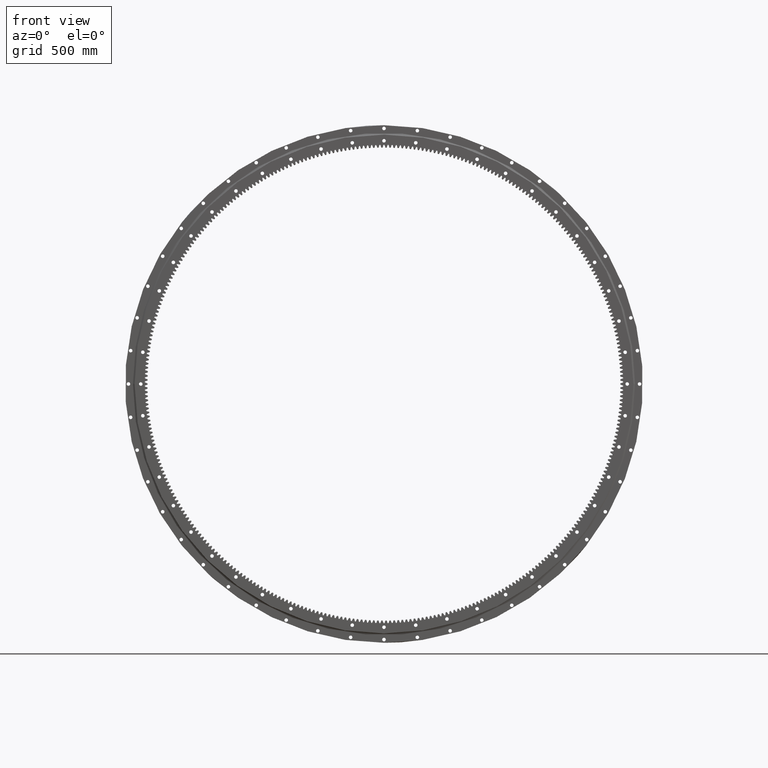
[diagram: clean part render]
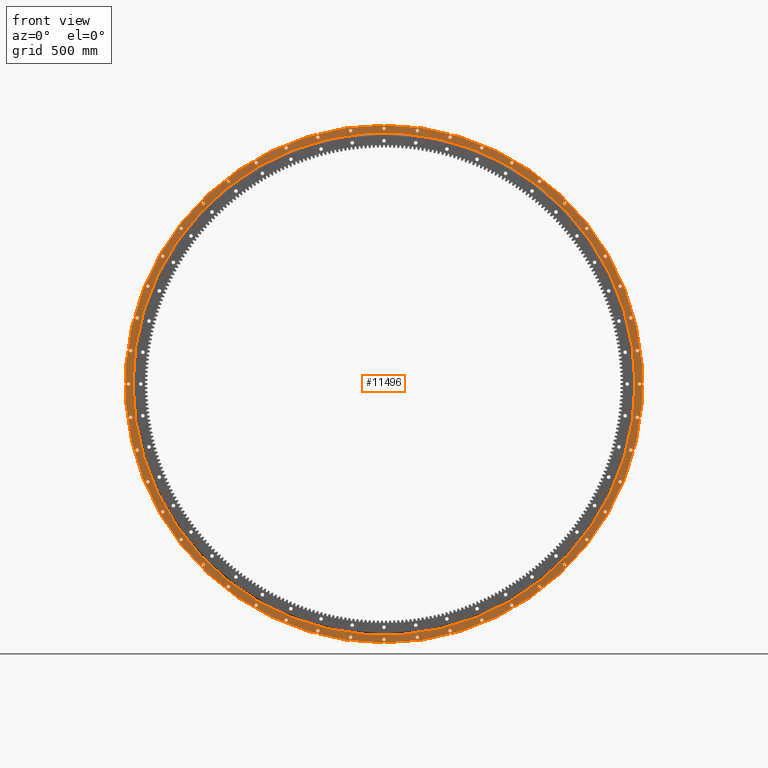
[diagram: same view with one face highlighted and labeled with its STEP entity id]
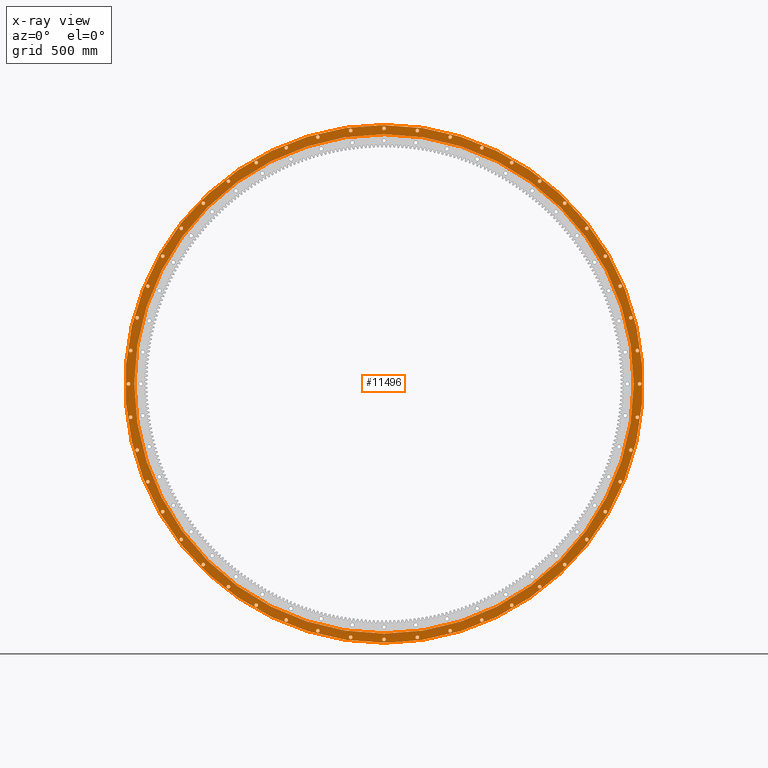
[diagram: x-ray of the same camera — body ghosted, the highlighted face saturated]
A machine part, front view. The second image highlights one B-rep face of the part: STEP entity #11496.
The next image is the same camera in x-ray: the body ghosted, the highlighted face saturated — about 0% of this face is hidden behind the body in this view.
In plain terms, the highlighted planar face has unit normal (-0, 1, 0).
Its self-contained STEP definition (entity closure, byte-faithful):
#85 = CIRCLE ( 'NONE', #32088, 10.99999999999992200 ) ;
#116 = EDGE_CURVE ( 'NONE', #82799, #20748, #8782, .T. ) ;
#243 = FACE_BOUND ( 'NONE', #5540, .T. ) ;
#384 = CARTESIAN_POINT ( 'NONE',  ( 205.5787527465590500, -34.99999999999973000, 1561.525656663754000 ) ) ;
#565 = CIRCLE ( 'NONE', #6968, 1538.905000000000000 ) ;
#904 = CIRCLE ( 'NONE', #64071, 10.99999999999999800 ) ;
#915 = EDGE_CURVE ( 'NONE', #20748, #82799, #78589, .T. ) ;
#953 = VERTEX_POINT ( 'NONE', #78917 ) ;
#957 = AXIS2_PLACEMENT_3D ( 'NONE', #51137, #11165, #57854 ) ;
#1067 = CARTESIAN_POINT ( 'NONE',  ( -1113.693180368815100, -34.99999999999987200, 1124.693180368809600 ) ) ;
#1085 = CARTESIAN_POINT ( 'NONE',  ( -1466.110263705279100, -34.99999999999989300, 602.7264059750111800 ) ) ;
#1126 = CIRCLE ( 'NONE', #76121, 10.99999999999992200 ) ;
#1446 = AXIS2_PLACEMENT_3D ( 'NONE', #38623, #85342, #45347 ) ;
#1463 = CARTESIAN_POINT ( 'NONE',  ( -1238.531510958697900, -34.99999999999987900, 958.7992506887325100 ) ) ;
#1513 = CARTESIAN_POINT ( 'NONE',  ( -1510.333176405284100, -34.99999999999989300, 407.6399960364649400 ) ) ;
#1536 = EDGE_LOOP ( 'NONE', ( #67283, #36513 ) ) ;
#1549 = EDGE_LOOP ( 'NONE', ( #33748, #37899 ) ) ;
#1747 = VERTEX_POINT ( 'NONE', #72393 ) ;
#1792 = AXIS2_PLACEMENT_3D ( 'NONE', #64837, #24873, #71539 ) ;
#1836 = EDGE_CURVE ( 'NONE', #37067, #42224, #75308, .T. ) ;
#1997 = VERTEX_POINT ( 'NONE', #11629 ) ;
#2007 = EDGE_CURVE ( 'NONE', #34180, #38722, #15753, .T. ) ;
#2038 = EDGE_CURVE ( 'NONE', #37060, #40230, #11638, .T. ) ;
#2051 = CIRCLE ( 'NONE', #49262, 10.99999999999989900 ) ;
#2053 = EDGE_CURVE ( 'NONE', #60004, #47289, #82603, .T. ) ;
#2149 = CIRCLE ( 'NONE', #37200, 10.99999999999986300 ) ;
#2191 = EDGE_LOOP ( 'NONE', ( #48384, #57096 ) ) ;
#2234 = DIRECTION ( 'NONE',  ( 1.173697223544192200E-016, -1.000000000000000000, -3.494217355385783800E-017 ) ) ;
#2309 = ORIENTED_EDGE ( 'NONE', *, *, #71579, .F. ) ;
#2331 = FACE_BOUND ( 'NONE', #75563, .T. ) ;
#2392 = CARTESIAN_POINT ( 'NONE',  ( 407.6399960364825600, -34.99999999999959500, -1521.333176405279100 ) ) ;
#2695 = DIRECTION ( 'NONE',  ( 1.173697223544192200E-016, -1.000000000000000000, -3.494217355385783800E-017 ) ) ;
#2836 = CARTESIAN_POINT ( 'NONE',  ( -407.6399960364719300, -34.99999999999980100, 1510.333176405282100 ) ) ;
#3145 = CARTESIAN_POINT ( 'NONE',  ( -1238.531510958689500, -34.99999999999980800, -958.7992506887424000 ) ) ;
#3298 = ORIENTED_EDGE ( 'NONE', *, *, #41469, .F. ) ;
#3443 = EDGE_CURVE ( 'NONE', #65083, #52398, #47944, .T. ) ;
#3504 = CARTESIAN_POINT ( 'NONE',  ( -1564.000000000000000, -34.99999999999988600, -6.376479201196969800E-012 ) ) ;
#3516 = AXIS2_PLACEMENT_3D ( 'NONE', #12884, #59614, #19595 ) ;
#3569 = CARTESIAN_POINT ( 'NONE',  ( -787.5000000000022700, -34.99999999999983700, 1363.990010960489400 ) ) ;
#3648 = DIRECTION ( 'NONE',  ( 1.173697223544192200E-016, -1.000000000000000000, -3.494217355385783800E-017 ) ) ;
#3924 = DIRECTION ( 'NONE',  ( 0.9238795325112854100, 0.0000000000000000000, 0.3826834323650928900 ) ) ;
#4049 = DIRECTION ( 'NONE',  ( 0.9659258262890689800, 0.0000000000000000000, 0.2588190451025180700 ) ) ;
#4084 = EDGE_CURVE ( 'NONE', #48589, #37905, #63528, .T. ) ;
#4134 = CARTESIAN_POINT ( 'NONE',  ( -205.5787527465699300, -34.99999999999966600, -1561.525656663752700 ) ) ;
#4207 = VERTEX_POINT ( 'NONE', #70647 ) ;
#4412 = FACE_BOUND ( 'NONE', #63593, .T. ) ;
#4583 = CARTESIAN_POINT ( 'NONE',  ( -1561.525656663751800, -34.99999999999988600, 205.5787527465760700 ) ) ;
#4623 = DIRECTION ( 'NONE',  ( -0.9238795325112818500, 0.0000000000000000000, 0.3826834323651014900 ) ) ;
#4673 = EDGE_LOOP ( 'NONE', ( #30884, #54714 ) ) ;
#4733 = ORIENTED_EDGE ( 'NONE', *, *, #28055, .F. ) ;
#4863 = AXIS2_PLACEMENT_3D ( 'NONE', #44378, #64543, #21745 ) ;
#4905 = DIRECTION ( 'NONE',  ( 5.551115123125782100E-017, -3.607185058938519800E-017, 1.000000000000000000 ) ) ;
#5082 = VERTEX_POINT ( 'NONE', #48725 ) ;
#5204 = DIRECTION ( 'NONE',  ( 1.173697223544192200E-016, -1.000000000000000000, -3.494217355385783800E-017 ) ) ;
#5234 = CIRCLE ( 'NONE', #21297, 10.99999999999995900 ) ;
#5271 = EDGE_CURVE ( 'NONE', #52979, #5082, #77284, .T. ) ;
#5423 = AXIS2_PLACEMENT_3D ( 'NONE', #36666, #83403, #43400 ) ;
#5483 = CIRCLE ( 'NONE', #31248, 10.99999999999993100 ) ;
#5540 = EDGE_LOOP ( 'NONE', ( #60662, #76166 ) ) ;
#5562 = AXIS2_PLACEMENT_3D ( 'NONE', #65220, #25273, #71925 ) ;
#5942 = VERTEX_POINT ( 'NONE', #66058 ) ;
#6087 = DIRECTION ( 'NONE',  ( 1.173697223544192200E-016, -1.000000000000000000, -3.494217355385783800E-017 ) ) ;
#6196 = VERTEX_POINT ( 'NONE', #30403 ) ;
#6239 = VERTEX_POINT ( 'NONE', #51165 ) ;
#6305 = ORIENTED_EDGE ( 'NONE', *, *, #57916, .F. ) ;
#6315 = CARTESIAN_POINT ( 'NONE',  ( 602.7264059750285700, -34.99999999999958100, -1466.110263705271100 ) ) ;
#6490 = FACE_BOUND ( 'NONE', #36069, .T. ) ;
#6655 = CARTESIAN_POINT ( 'NONE',  ( 602.7264059749967400, -34.99999999999968000, 1455.110263705285200 ) ) ;
#6817 = AXIS2_PLACEMENT_3D ( 'NONE', #75759, #35756, #82487 ) ;
#6824 = DIRECTION ( 'NONE',  ( 1.173697223544192200E-016, -1.000000000000000000, -3.494217355385783800E-017 ) ) ;
#6968 = AXIS2_PLACEMENT_3D ( 'NONE', #84839, #44834, #4905 ) ;
#7079 = DIRECTION ( 'NONE',  ( 0.1305261922200509100, 0.0000000000000000000, 0.9914448613738106000 ) ) ;
#7114 = CARTESIAN_POINT ( 'NONE',  ( 205.5787527465590500, -34.99999999999973000, 1561.525656663754000 ) ) ;
#7472 = EDGE_CURVE ( 'NONE', #29850, #40131, #19491, .T. ) ;
#7482 = CIRCLE ( 'NONE', #42694, 1538.905000000000000 ) ;
#7586 = CARTESIAN_POINT ( 'NONE',  ( -1249.531510958697700, -34.99999999999987900, 958.7992506887325100 ) ) ;
#7773 = EDGE_CURVE ( 'NONE', #41659, #83063, #34049, .T. ) ;
#7786 = ORIENTED_EDGE ( 'NONE', *, *, #79110, .F. ) ;
#7916 = AXIS2_PLACEMENT_3D ( 'NONE', #70051, #30037, #76739 ) ;
#8018 = VERTEX_POINT ( 'NONE', #82356 ) ;
#8061 = EDGE_LOOP ( 'NONE', ( #57825, #49382 ) ) ;
#8112 = DIRECTION ( 'NONE',  ( 1.173697223544192200E-016, -1.000000000000000000, -3.494217355385783800E-017 ) ) ;
#8169 = ORIENTED_EDGE ( 'NONE', *, *, #75540, .F. ) ;
#8237 = AXIS2_PLACEMENT_3D ( 'NONE', #75243, #35220, #81962 ) ;
#8320 = EDGE_CURVE ( 'NONE', #76507, #76973, #29810, .T. ) ;
#8364 = EDGE_LOOP ( 'NONE', ( #21698, #31210 ) ) ;
#8384 = CARTESIAN_POINT ( 'NONE',  ( 1374.990010960481200, -34.99999999999956700, 787.5000000000166000 ) ) ;
#8616 = FACE_BOUND ( 'NONE', #16648, .T. ) ;
#8649 = CARTESIAN_POINT ( 'NONE',  ( 1550.525656663749300, -34.99999999999952400, 205.5787527465989200 ) ) ;
#8782 = CIRCLE ( 'NONE', #48355, 10.99999999999999800 ) ;
#8817 = CARTESIAN_POINT ( 'NONE',  ( -407.6399960364595900, -34.99999999999969400, -1521.333176405285300 ) ) ;
#8843 = DIRECTION ( 'NONE',  ( 1.173697223544192200E-016, -1.000000000000000000, -3.494217355385783800E-017 ) ) ;
#9044 = VERTEX_POINT ( 'NONE', #39023 ) ;
#9082 = EDGE_LOOP ( 'NONE', ( #54138, #7786 ) ) ;
#9095 = CARTESIAN_POINT ( 'NONE',  ( -787.5000000000022700, -34.99999999999983700, 1374.990010960489400 ) ) ;
#9104 = DIRECTION ( 'NONE',  ( 0.2588190451025133600, 0.0000000000000000000, -0.9659258262890702000 ) ) ;
#9146 = CIRCLE ( 'NONE', #66915, 10.99999999999992200 ) ;
#9233 = CIRCLE ( 'NONE', #41385, 10.99999999999990200 ) ;
#9294 = CARTESIAN_POINT ( 'NONE',  ( -407.6399960364719300, -34.99999999999980100, 1532.333176405281800 ) ) ;
#9304 = CARTESIAN_POINT ( 'NONE',  ( -958.7992506887274000, -34.99999999999976600, -1249.531510958701300 ) ) ;
#9489 = DIRECTION ( 'NONE',  ( 1.173697223544192200E-016, -1.000000000000000000, -3.494217355385783800E-017 ) ) ;
#9741 = CARTESIAN_POINT ( 'NONE',  ( -205.5787527465832600, -34.99999999999977300, 1561.525656663751300 ) ) ;
#9758 = DIRECTION ( 'NONE',  ( 1.173697223544192200E-016, -1.000000000000000000, -3.494217355385783800E-017 ) ) ;
#9823 = CIRCLE ( 'NONE', #75045, 10.99999999999987700 ) ;
#9824 = EDGE_CURVE ( 'NONE', #26641, #1997, #65080, .T. ) ;
#10261 = DIRECTION ( 'NONE',  ( -5.551115123125782700E-017, 3.494217355385783100E-017, -1.000000000000000000 ) ) ;
#10263 = DIRECTION ( 'NONE',  ( -0.4999999999999871800, 0.0000000000000000000, 0.8660254037844460400 ) ) ;
#10395 = CARTESIAN_POINT ( 'NONE',  ( -787.4999999999914700, -34.99999999999973700, -1352.990010960496200 ) ) ;
#10431 = CARTESIAN_POINT ( 'NONE',  ( 602.7264059749967400, -34.99999999999968000, 1455.110263705285200 ) ) ;
#10525 = CARTESIAN_POINT ( 'NONE',  ( -787.4999999999914700, -34.99999999999973700, -1374.990010960496000 ) ) ;
#10703 = FACE_BOUND ( 'NONE', #11406, .T. ) ;
#10755 = CARTESIAN_POINT ( 'NONE',  ( 1455.110263705269300, -34.99999999999954500, 602.7264059750336900 ) ) ;
#10814 = EDGE_LOOP ( 'NONE', ( #44214, #52724 ) ) ;
#10825 = DIRECTION ( 'NONE',  ( 1.173697223544192200E-016, -1.000000000000000000, -3.494217355385783800E-017 ) ) ;
#10861 = DIRECTION ( 'NONE',  ( -0.1305261922200583500, 0.0000000000000000000, -0.9914448613738096000 ) ) ;
#10900 = ORIENTED_EDGE ( 'NONE', *, *, #71619, .F. ) ;
#11089 = CARTESIAN_POINT ( 'NONE',  ( 407.6399960364825600, -34.99999999999959500, -1510.333176405279100 ) ) ;
#11165 = DIRECTION ( 'NONE',  ( 1.173697223544192200E-016, -1.000000000000000000, -3.494217355385783800E-017 ) ) ;
#11189 = ORIENTED_EDGE ( 'NONE', *, *, #31920, .F. ) ;
#11309 = DIRECTION ( 'NONE',  ( -0.9914448613738088300, 0.0000000000000000000, 0.1305261922200632900 ) ) ;
#11406 = EDGE_LOOP ( 'NONE', ( #43846, #79058 ) ) ;
#11496 = ADVANCED_FACE ( 'NONE', ( #30499, #48286, #12753, #14827, #81673, #63939, #46162, #28424, #10703, #79592, #61853, #44060, #26333, #8616, #77489, #59762, #41930, #24262, #6490, #75385, #57697, #39857, #22157, #4412, #73285, #55611, #37757, #20038, #2331, #71226, #53498, #35660, #17940, #243, #69141, #51409, #33570, #15827, #84783, #67037, #49300, #31492, #13734, #82682, #64932, #47184, #29423, #11709, #80597, #62854 ), #63370, .F. ) ;
#11502 = AXIS2_PLACEMENT_3D ( 'NONE', #83858, #43854, #3924 ) ;
#11566 = CARTESIAN_POINT ( 'NONE',  ( 1466.110263705283200, -34.99999999999950300, -602.7264059750017400 ) ) ;
#11629 = CARTESIAN_POINT ( 'NONE',  ( 787.4999999999818100, -34.99999999999965900, 1352.990010960501400 ) ) ;
#11638 = CIRCLE ( 'NONE', #76972, 11.00000000000002700 ) ;
#11675 = DIRECTION ( 'NONE',  ( 1.173697223544192200E-016, -1.000000000000000000, -3.494217355385783800E-017 ) ) ;
#11709 = FACE_BOUND ( 'NONE', #8061, .T. ) ;
#11765 = EDGE_CURVE ( 'NONE', #79631, #58532, #46086, .T. ) ;
#11845 = AXIS2_PLACEMENT_3D ( 'NONE', #28134, #74798, #34792 ) ;
#11900 = EDGE_CURVE ( 'NONE', #31674, #73156, #31555, .T. ) ;
#11998 = CARTESIAN_POINT ( 'NONE',  ( 205.5787527465590500, -34.99999999999973000, 1550.525656663754300 ) ) ;
#12005 = EDGE_CURVE ( 'NONE', #29302, #82381, #45149, .T. ) ;
#12024 = DIRECTION ( 'NONE',  ( 1.173697223544192200E-016, -1.000000000000000000, -3.494217355385783800E-017 ) ) ;
#12341 = CARTESIAN_POINT ( 'NONE',  ( -1374.990010960486400, -34.99999999999982900, -787.5000000000070500 ) ) ;
#12453 = EDGE_LOOP ( 'NONE', ( #63244, #28412 ) ) ;
#12626 = CIRCLE ( 'NONE', #24596, 10.99999999999987700 ) ;
#12677 = CARTESIAN_POINT ( 'NONE',  ( 1572.525656663749000, -34.99999999999952400, 205.5787527465989200 ) ) ;
#12731 = VERTEX_POINT ( 'NONE', #62069 ) ;
#12753 = FACE_BOUND ( 'NONE', #9082, .T. ) ;
#12884 = CARTESIAN_POINT ( 'NONE',  ( -407.6399960364719300, -34.99999999999980100, 1521.333176405282100 ) ) ;
#12939 = EDGE_LOOP ( 'NONE', ( #75678, #21150 ) ) ;
#12942 = VERTEX_POINT ( 'NONE', #11566 ) ;
#13261 = EDGE_CURVE ( 'NONE', #5942, #22882, #1126, .T. ) ;
#13323 = DIRECTION ( 'NONE',  ( 0.3826834323650928900, 0.0000000000000000000, 0.9238795325112854100 ) ) ;
#13362 = CARTESIAN_POINT ( 'NONE',  ( -205.5787527465832600, -34.99999999999977300, 1572.525656663751100 ) ) ;
#13377 = CIRCLE ( 'NONE', #83439, 11.00000000000002100 ) ;
#13573 = AXIS2_PLACEMENT_3D ( 'NONE', #37842, #84566, #44569 ) ;
#13607 = DIRECTION ( 'NONE',  ( 1.173697223544192200E-016, -1.000000000000000000, -3.494217355385783800E-017 ) ) ;
#13623 = VERTEX_POINT ( 'NONE', #14010 ) ;
#13734 = FACE_BOUND ( 'NONE', #31703, .T. ) ;
#13784 = DIRECTION ( 'NONE',  ( 0.1305261922200509100, 0.0000000000000000000, 0.9914448613738106000 ) ) ;
#13787 = CIRCLE ( 'NONE', #83530, 11.00000000000001400 ) ;
#13815 = AXIS2_PLACEMENT_3D ( 'NONE', #35804, #82534, #42513 ) ;
#13961 = ORIENTED_EDGE ( 'NONE', *, *, #29818, .F. ) ;
#14010 = CARTESIAN_POINT ( 'NONE',  ( -958.7992506887380800, -34.99999999999985100, 1260.531510958692700 ) ) ;
#14181 = CARTESIAN_POINT ( 'NONE',  ( -1561.525656663750600, -34.99999999999987200, -205.5787527465887500 ) ) ;
#14233 = DIRECTION ( 'NONE',  ( -0.7933533402912313900, 0.0000000000000000000, 0.6087614290087256500 ) ) ;
#14235 = CARTESIAN_POINT ( 'NONE',  ( -1532.333176405283900, -34.99999999999989300, 407.6399960364649400 ) ) ;
#14240 = DIRECTION ( 'NONE',  ( 1.173697223544192200E-016, -1.000000000000000000, -3.494217355385783800E-017 ) ) ;
#14361 = EDGE_CURVE ( 'NONE', #17395, #49001, #41583, .T. ) ;
#14430 = DIRECTION ( 'NONE',  ( 1.173697223544192200E-016, -1.000000000000000000, -3.494217355385783800E-017 ) ) ;
#14467 = AXIS2_PLACEMENT_3D ( 'NONE', #72215, #32215, #78931 ) ;
#14612 = CARTESIAN_POINT ( 'NONE',  ( -205.5787527465832600, -34.99999999999977300, 1561.525656663751300 ) ) ;
#14632 = VERTEX_POINT ( 'NONE', #44588 ) ;
#14662 = EDGE_CURVE ( 'NONE', #83586, #46437, #29067, .T. ) ;
#14802 = CARTESIAN_POINT ( 'NONE',  ( 1561.525656663753400, -34.99999999999951000, -205.5787527465644800 ) ) ;
#14827 = FACE_BOUND ( 'NONE', #65289, .T. ) ;
#15037 = CIRCLE ( 'NONE', #38551, 10.99999999999992200 ) ;
#15051 = EDGE_CURVE ( 'NONE', #60949, #50791, #20797, .T. ) ;
#15232 = DIRECTION ( 'NONE',  ( 1.173697223544192200E-016, -1.000000000000000000, -3.494217355385783800E-017 ) ) ;
#15447 = DIRECTION ( 'NONE',  ( -0.2588190451025325600, 0.0000000000000000000, -0.9659258262890652000 ) ) ;
#15753 = CIRCLE ( 'NONE', #54648, 10.99999999999999800 ) ;
#15827 = FACE_BOUND ( 'NONE', #15905, .T. ) ;
#15905 = EDGE_LOOP ( 'NONE', ( #23206, #64136 ) ) ;
#15947 = DIRECTION ( 'NONE',  ( -0.6087614290087256500, 0.0000000000000000000, -0.7933533402912313900 ) ) ;
#16063 = EDGE_CURVE ( 'NONE', #50791, #60949, #22740, .T. ) ;
#16069 = EDGE_CURVE ( 'NONE', #39181, #66601, #58283, .T. ) ;
#16076 = ORIENTED_EDGE ( 'NONE', *, *, #11765, .T. ) ;
#16215 = CIRCLE ( 'NONE', #55073, 11.00000000000001400 ) ;
#16387 = DIRECTION ( 'NONE',  ( -0.1305261922200385000, 0.0000000000000000000, 0.9914448613738121600 ) ) ;
#16552 = VERTEX_POINT ( 'NONE', #50362 ) ;
#16577 = CIRCLE ( 'NONE', #72935, 10.99999999999993100 ) ;
#16648 = EDGE_LOOP ( 'NONE', ( #34611, #13961 ) ) ;
#16862 = AXIS2_PLACEMENT_3D ( 'NONE', #60914, #20916, #67619 ) ;
#16871 = ORIENTED_EDGE ( 'NONE', *, *, #80067, .F. ) ;
#16880 = EDGE_CURVE ( 'NONE', #38498, #56381, #76912, .T. ) ;
#16889 = CARTESIAN_POINT ( 'NONE',  ( 8.953432846794345500E-014, -34.99999999999975100, 1538.905000000000000 ) ) ;
#17047 = EDGE_LOOP ( 'NONE', ( #68185, #47029 ) ) ;
#17083 = DIRECTION ( 'NONE',  ( 0.3826834323650928900, 0.0000000000000000000, 0.9238795325112854100 ) ) ;
#17116 = CARTESIAN_POINT ( 'NONE',  ( 1363.990010960498900, -34.99999999999951000, -787.4999999999867000 ) ) ;
#17146 = AXIS2_PLACEMENT_3D ( 'NONE', #21584, #68271, #28288 ) ;
#17285 = CIRCLE ( 'NONE', #84303, 11.00000000000002700 ) ;
#17340 = VERTEX_POINT ( 'NONE', #46662 ) ;
#17395 = VERTEX_POINT ( 'NONE', #14235 ) ;
#17402 = DIRECTION ( 'NONE',  ( 0.9238795325112854100, 0.0000000000000000000, 0.3826834323650928900 ) ) ;
#17482 = CARTESIAN_POINT ( 'NONE',  ( 1249.531510958683400, -34.99999999999958800, 958.7992506887504800 ) ) ;
#17516 = AXIS2_PLACEMENT_3D ( 'NONE', #14802, #61528, #21554 ) ;
#17717 = CARTESIAN_POINT ( 'NONE',  ( -1260.531510958697700, -34.99999999999987900, 958.7992506887325100 ) ) ;
#17786 = CARTESIAN_POINT ( 'NONE',  ( 1113.693180368822600, -34.99999999999952400, -1102.693180368802100 ) ) ;
#17794 = CARTESIAN_POINT ( 'NONE',  ( -1575.000000000000000, -34.99999999999988600, -6.377266265475580100E-012 ) ) ;
#17940 = FACE_BOUND ( 'NONE', #41070, .T. ) ;
#17963 = AXIS2_PLACEMENT_3D ( 'NONE', #10431, #57143, #17083 ) ;
#18558 = AXIS2_PLACEMENT_3D ( 'NONE', #28674, #75355, #35330 ) ;
#18594 = ORIENTED_EDGE ( 'NONE', *, *, #82539, .F. ) ;
#18608 = EDGE_LOOP ( 'NONE', ( #67981, #50820 ) ) ;
#18753 = AXIS2_PLACEMENT_3D ( 'NONE', #38128, #84864, #44853 ) ;
#19174 = CARTESIAN_POINT ( 'NONE',  ( 1510.333176405287300, -34.99999999999950300, -407.6399960364543100 ) ) ;
#19309 = CARTESIAN_POINT ( 'NONE',  ( 1363.990010960498900, -34.99999999999951000, -787.4999999999867000 ) ) ;
#19400 = CARTESIAN_POINT ( 'NONE',  ( 1363.990010960481200, -34.99999999999956700, 787.5000000000166000 ) ) ;
#19491 = CIRCLE ( 'NONE', #4863, 10.99999999999995900 ) ;
#19564 = EDGE_CURVE ( 'NONE', #22882, #5942, #68504, .T. ) ;
#19595 = DIRECTION ( 'NONE',  ( -0.2588190451025086900, 0.0000000000000000000, 0.9659258262890714200 ) ) ;
#19597 = EDGE_CURVE ( 'NONE', #39674, #40686, #84162, .T. ) ;
#19639 = EDGE_LOOP ( 'NONE', ( #16871, #75864 ) ) ;
#19769 = CARTESIAN_POINT ( 'NONE',  ( -1466.110263705273600, -34.99999999999985100, -602.7264059750228900 ) ) ;
#19867 = CARTESIAN_POINT ( 'NONE',  ( -1521.333176405280700, -34.99999999999986500, -407.6399960364772700 ) ) ;
#19985 = VERTEX_POINT ( 'NONE', #72476 ) ;
#20038 = FACE_BOUND ( 'NONE', #34050, .T. ) ;
#20077 = EDGE_LOOP ( 'NONE', ( #37835, #25261 ) ) ;
#20146 = AXIS2_PLACEMENT_3D ( 'NONE', #29108, #75802, #35793 ) ;
#20438 = EDGE_LOOP ( 'NONE', ( #83397, #57494 ) ) ;
#20701 = CARTESIAN_POINT ( 'NONE',  ( 602.7264059749967400, -34.99999999999968000, 1466.110263705285200 ) ) ;
#20727 = AXIS2_PLACEMENT_3D ( 'NONE', #54475, #14430, #61155 ) ;
#20748 = VERTEX_POINT ( 'NONE', #1463 ) ;
#20797 = CIRCLE ( 'NONE', #33141, 10.99999999999984000 ) ;
#20812 = EDGE_CURVE ( 'NONE', #26214, #59901, #15037, .T. ) ;
#20916 = DIRECTION ( 'NONE',  ( 1.173697223544192200E-016, -1.000000000000000000, -3.494217355385783800E-017 ) ) ;
#20921 = DIRECTION ( 'NONE',  ( -0.9914448613738118300, 0.0000000000000000000, -0.1305261922200409700 ) ) ;
#20987 = DIRECTION ( 'NONE',  ( 1.173697223544192200E-016, -1.000000000000000000, -3.494217355385783800E-017 ) ) ;
#21150 = ORIENTED_EDGE ( 'NONE', *, *, #74818, .F. ) ;
#21210 = CARTESIAN_POINT ( 'NONE',  ( -1113.693180368805800, -34.99999999999978700, -1113.693180368818700 ) ) ;
#21227 = AXIS2_PLACEMENT_3D ( 'NONE', #45156, #5204, #51916 ) ;
#21297 = AXIS2_PLACEMENT_3D ( 'NONE', #50804, #10825, #57527 ) ;
#21338 = DIRECTION ( 'NONE',  ( -0.1305261922200385000, 0.0000000000000000000, 0.9914448613738121600 ) ) ;
#21375 = AXIS2_PLACEMENT_3D ( 'NONE', #384, #47037, #7079 ) ;
#21416 = ORIENTED_EDGE ( 'NONE', *, *, #29305, .F. ) ;
#21548 = CIRCLE ( 'NONE', #43077, 10.99999999999990800 ) ;
#21554 = DIRECTION ( 'NONE',  ( 0.9914448613738099400, 0.0000000000000000000, -0.1305261922200558800 ) ) ;
#21584 = CARTESIAN_POINT ( 'NONE',  ( 958.7992506887461600, -34.99999999999954500, -1249.531510958686600 ) ) ;
#21698 = ORIENTED_EDGE ( 'NONE', *, *, #62582, .F. ) ;
#21702 = CARTESIAN_POINT ( 'NONE',  ( 787.4999999999818100, -34.99999999999965900, 1363.990010960501400 ) ) ;
#21745 = DIRECTION ( 'NONE',  ( -0.8660254037844460400, 0.0000000000000000000, -0.4999999999999871800 ) ) ;
#21892 = DIRECTION ( 'NONE',  ( 1.173697223544192200E-016, -1.000000000000000000, -3.494217355385783800E-017 ) ) ;
#21908 = CARTESIAN_POINT ( 'NONE',  ( -1444.110263705279100, -34.99999999999989300, 602.7264059750111800 ) ) ;
#21935 = EDGE_CURVE ( 'NONE', #37905, #48589, #39909, .T. ) ;
#22012 = DIRECTION ( 'NONE',  ( 1.173697223544192200E-016, -1.000000000000000000, -3.494217355385783800E-017 ) ) ;
#22157 = FACE_BOUND ( 'NONE', #59534, .T. ) ;
#22242 = CIRCLE ( 'NONE', #23168, 10.99999999999989900 ) ;
#22310 = EDGE_CURVE ( 'NONE', #39458, #80733, #36722, .T. ) ;
#22568 = DIRECTION ( 'NONE',  ( 1.173697223544192200E-016, -1.000000000000000000, -3.494217355385783800E-017 ) ) ;
#22586 = ORIENTED_EDGE ( 'NONE', *, *, #32411, .F. ) ;
#22740 = CIRCLE ( 'NONE', #59540, 10.99999999999984000 ) ;
#22775 = CARTESIAN_POINT ( 'NONE',  ( -2.286918467515259500E-011, -34.99999999999975100, 1575.000000000000000 ) ) ;
#22832 = CARTESIAN_POINT ( 'NONE',  ( -1510.333176405280700, -34.99999999999986500, -407.6399960364772100 ) ) ;
#22882 = VERTEX_POINT ( 'NONE', #71735 ) ;
#22979 = CARTESIAN_POINT ( 'NONE',  ( -602.7264059750176600, -34.99999999999981500, 1455.110263705275900 ) ) ;
#23156 = CARTESIAN_POINT ( 'NONE',  ( 407.6399960364490200, -34.99999999999970200, 1510.333176405288200 ) ) ;
#23168 = AXIS2_PLACEMENT_3D ( 'NONE', #64939, #24984, #71652 ) ;
#23206 = ORIENTED_EDGE ( 'NONE', *, *, #43012, .F. ) ;
#23280 = CIRCLE ( 'NONE', #13815, 11.00000000000002100 ) ;
#23366 = CARTESIAN_POINT ( 'NONE',  ( 1444.110263705283400, -34.99999999999950300, -602.7264059750017400 ) ) ;
#23396 = DIRECTION ( 'NONE',  ( 1.173697223544192200E-016, -1.000000000000000000, -3.494217355385783800E-017 ) ) ;
#23455 = CARTESIAN_POINT ( 'NONE',  ( -602.7264059750067400, -34.99999999999971600, -1466.110263705280400 ) ) ;
#23734 = EDGE_LOOP ( 'NONE', ( #61789, #8169 ) ) ;
#23744 = ORIENTED_EDGE ( 'NONE', *, *, #69517, .F. ) ;
#23876 = DIRECTION ( 'NONE',  ( 0.8660254037844322700, 0.0000000000000000000, -0.5000000000000111000 ) ) ;
#23912 = ORIENTED_EDGE ( 'NONE', *, *, #48900, .F. ) ;
#24042 = ORIENTED_EDGE ( 'NONE', *, *, #69478, .F. ) ;
#24047 = CARTESIAN_POINT ( 'NONE',  ( 787.4999999999818100, -34.99999999999965900, 1374.990010960501400 ) ) ;
#24150 = CARTESIAN_POINT ( 'NONE',  ( 602.7264059750285700, -34.99999999999958100, -1444.110263705271300 ) ) ;
#24205 = CIRCLE ( 'NONE', #21375, 10.99999999999992200 ) ;
#24255 = DIRECTION ( 'NONE',  ( 0.7933533402912362800, 0.0000000000000000000, 0.6087614290087193200 ) ) ;
#24262 = FACE_BOUND ( 'NONE', #59108, .T. ) ;
#24279 = CARTESIAN_POINT ( 'NONE',  ( 1249.531510958704500, -34.99999999999951700, -958.7992506887230800 ) ) ;
#24294 = ORIENTED_EDGE ( 'NONE', *, *, #48020, .F. ) ;
#24505 = DIRECTION ( 'NONE',  ( 1.173697223544192200E-016, -1.000000000000000000, -3.494217355385783800E-017 ) ) ;
#24545 = DIRECTION ( 'NONE',  ( 1.173697223544192200E-016, -1.000000000000000000, -3.494217355385783800E-017 ) ) ;
#24547 = DIRECTION ( 'NONE',  ( -1.000000000000000000, 0.0000000000000000000, 1.052995516776071300E-014 ) ) ;
#24596 = AXIS2_PLACEMENT_3D ( 'NONE', #19309, #66035, #26047 ) ;
#24838 = CARTESIAN_POINT ( 'NONE',  ( -958.7992506887274000, -34.99999999999976600, -1249.531510958701300 ) ) ;
#24873 = DIRECTION ( 'NONE',  ( 1.173697223544192200E-016, -1.000000000000000000, -3.494217355385783800E-017 ) ) ;
#24984 = DIRECTION ( 'NONE',  ( 1.173697223544192200E-016, -1.000000000000000000, -3.494217355385783800E-017 ) ) ;
#25044 = CARTESIAN_POINT ( 'NONE',  ( -1532.333176405280500, -34.99999999999986500, -407.6399960364772100 ) ) ;
#25141 = VERTEX_POINT ( 'NONE', #60957 ) ;
#25213 = CIRCLE ( 'NONE', #48621, 1595.000000000000000 ) ;
#25224 = VERTEX_POINT ( 'NONE', #62392 ) ;
#25261 = ORIENTED_EDGE ( 'NONE', *, *, #40173, .F. ) ;
#25273 = DIRECTION ( 'NONE',  ( 1.173697223544192200E-016, -1.000000000000000000, -3.494217355385783800E-017 ) ) ;
#25416 = DIRECTION ( 'NONE',  ( 1.173697223544192200E-016, -1.000000000000000000, -3.494217355385783800E-017 ) ) ;
#25490 = AXIS2_PLACEMENT_3D ( 'NONE', #64505, #24545, #71233 ) ;
#25525 = EDGE_CURVE ( 'NONE', #25224, #46153, #83443, .T. ) ;
#25536 = EDGE_CURVE ( 'NONE', #37469, #51578, #16577, .T. ) ;
#25577 = VERTEX_POINT ( 'NONE', #80106 ) ;
#25874 = CARTESIAN_POINT ( 'NONE',  ( 1561.525656663753400, -34.99999999999951000, -205.5787527465644800 ) ) ;
#25889 = EDGE_CURVE ( 'NONE', #81554, #29282, #35225, .T. ) ;
#25957 = AXIS2_PLACEMENT_3D ( 'NONE', #53650, #13607, #60339 ) ;
#26047 = DIRECTION ( 'NONE',  ( 0.8660254037844322700, 0.0000000000000000000, -0.5000000000000111000 ) ) ;
#26150 = DIRECTION ( 'NONE',  ( 0.8660254037844417100, 0.0000000000000000000, 0.4999999999999947300 ) ) ;
#26214 = VERTEX_POINT ( 'NONE', #47609 ) ;
#26252 = CARTESIAN_POINT ( 'NONE',  ( -2.286857405248904800E-011, -34.99999999999975100, 1585.999999999999800 ) ) ;
#26333 = FACE_BOUND ( 'NONE', #28384, .T. ) ;
#26434 = CARTESIAN_POINT ( 'NONE',  ( 787.5000000000117100, -34.99999999999955900, -1374.990010960483700 ) ) ;
#26607 = DIRECTION ( 'NONE',  ( -0.9659258262890714200, 0.0000000000000000000, -0.2588190451025086900 ) ) ;
#26641 = VERTEX_POINT ( 'NONE', #24047 ) ;
#26846 = CARTESIAN_POINT ( 'NONE',  ( -602.7264059750176600, -34.99999999999981500, 1466.110263705275900 ) ) ;
#26984 = EDGE_LOOP ( 'NONE', ( #63162, #67852 ) ) ;
#27027 = CARTESIAN_POINT ( 'NONE',  ( 407.6399960364825600, -34.99999999999959500, -1521.333176405279100 ) ) ;
#27042 = VERTEX_POINT ( 'NONE', #9095 ) ;
#27149 = CARTESIAN_POINT ( 'NONE',  ( -1352.990010960493200, -34.99999999999988600, 787.4999999999961300 ) ) ;
#27162 = VERTEX_POINT ( 'NONE', #16889 ) ;
#27336 = ORIENTED_EDGE ( 'NONE', *, *, #50341, .F. ) ;
#27451 = ORIENTED_EDGE ( 'NONE', *, *, #15051, .F. ) ;
#27598 = VERTEX_POINT ( 'NONE', #49542 ) ;
#27713 = DIRECTION ( 'NONE',  ( 1.173697223544192200E-016, -1.000000000000000000, -3.494217355385783800E-017 ) ) ;
#27721 = CIRCLE ( 'NONE', #40058, 10.99999999999990400 ) ;
#27918 = DIRECTION ( 'NONE',  ( -0.7071067811865575600, 0.0000000000000000000, -0.7071067811865374700 ) ) ;
#28055 = EDGE_CURVE ( 'NONE', #12731, #71795, #27721, .T. ) ;
#28087 = CIRCLE ( 'NONE', #50188, 10.99999999999990200 ) ;
#28134 = CARTESIAN_POINT ( 'NONE',  ( 958.7992506887186400, -34.99999999999963100, 1249.531510958707900 ) ) ;
#28156 = CIRCLE ( 'NONE', #66049, 10.99999999999991500 ) ;
#28288 = DIRECTION ( 'NONE',  ( 0.6087614290087193200, 0.0000000000000000000, -0.7933533402912362800 ) ) ;
#28332 = EDGE_CURVE ( 'NONE', #13623, #57408, #44351, .T. ) ;
#28384 = EDGE_LOOP ( 'NONE', ( #30329, #28744 ) ) ;
#28411 = DIRECTION ( 'NONE',  ( 0.4999999999999947300, 0.0000000000000000000, 0.8660254037844417100 ) ) ;
#28412 = ORIENTED_EDGE ( 'NONE', *, *, #51758, .F. ) ;
#28424 = FACE_BOUND ( 'NONE', #12939, .T. ) ;
#28674 = CARTESIAN_POINT ( 'NONE',  ( 1113.693180368798300, -34.99999999999960900, 1113.693180368826700 ) ) ;
#28685 = VERTEX_POINT ( 'NONE', #56924 ) ;
#28730 = EDGE_LOOP ( 'NONE', ( #22586, #68510 ) ) ;
#28744 = ORIENTED_EDGE ( 'NONE', *, *, #21935, .F. ) ;
#28948 = CARTESIAN_POINT ( 'NONE',  ( 1238.531510958704800, -34.99999999999951700, -958.7992506887230800 ) ) ;
#29046 = VERTEX_POINT ( 'NONE', #48993 ) ;
#29056 = CARTESIAN_POINT ( 'NONE',  ( -958.7992506887380800, -34.99999999999985100, 1238.531510958692900 ) ) ;
#29067 = CIRCLE ( 'NONE', #72298, 10.99999999999990800 ) ;
#29108 = CARTESIAN_POINT ( 'NONE',  ( 1113.693180368798300, -34.99999999999960900, 1113.693180368826700 ) ) ;
#29282 = VERTEX_POINT ( 'NONE', #32271 ) ;
#29302 = VERTEX_POINT ( 'NONE', #78980 ) ;
#29305 = EDGE_CURVE ( 'NONE', #45751, #6196, #50541, .T. ) ;
#29423 = FACE_BOUND ( 'NONE', #53385, .T. ) ;
#29469 = DIRECTION ( 'NONE',  ( 5.551115123137996500E-017, 0.0000000000000000000, 1.000000000000000000 ) ) ;
#29576 = EDGE_LOOP ( 'NONE', ( #27451, #41728 ) ) ;
#29669 = DIRECTION ( 'NONE',  ( -0.3826834323650771800, 0.0000000000000000000, 0.9238795325112920700 ) ) ;
#29791 = AXIS2_PLACEMENT_3D ( 'NONE', #30979, #77691, #37677 ) ;
#29810 = CIRCLE ( 'NONE', #82035, 11.00000000000002100 ) ;
#29818 = EDGE_CURVE ( 'NONE', #52741, #12942, #85945, .T. ) ;
#29850 = VERTEX_POINT ( 'NONE', #12341 ) ;
#29860 = ORIENTED_EDGE ( 'NONE', *, *, #11900, .F. ) ;
#30037 = DIRECTION ( 'NONE',  ( 1.173697223544192200E-016, -1.000000000000000000, -3.494217355385783800E-017 ) ) ;
#30274 = EDGE_CURVE ( 'NONE', #14632, #42948, #5483, .T. ) ;
#30329 = ORIENTED_EDGE ( 'NONE', *, *, #4084, .F. ) ;
#30403 = CARTESIAN_POINT ( 'NONE',  ( 1550.525656663753600, -34.99999999999951000, -205.5787527465644800 ) ) ;
#30499 = FACE_BOUND ( 'NONE', #28730, .T. ) ;
#30884 = ORIENTED_EDGE ( 'NONE', *, *, #1836, .F. ) ;
#30899 = CIRCLE ( 'NONE', #56722, 10.99999999999995900 ) ;
#30932 = DIRECTION ( 'NONE',  ( 0.7933533402912313900, 0.0000000000000000000, -0.6087614290087256500 ) ) ;
#30979 = CARTESIAN_POINT ( 'NONE',  ( 1249.531510958683400, -34.99999999999958800, 958.7992506887504800 ) ) ;
#31210 = ORIENTED_EDGE ( 'NONE', *, *, #52823, .F. ) ;
#31248 = AXIS2_PLACEMENT_3D ( 'NONE', #17482, #64200, #24255 ) ;
#31492 = FACE_BOUND ( 'NONE', #10814, .T. ) ;
#31495 = DIRECTION ( 'NONE',  ( -0.6087614290087256500, 0.0000000000000000000, -0.7933533402912313900 ) ) ;
#31555 = CIRCLE ( 'NONE', #20146, 10.99999999999992200 ) ;
#31674 = VERTEX_POINT ( 'NONE', #73554 ) ;
#31703 = EDGE_LOOP ( 'NONE', ( #11189, #24042 ) ) ;
#31773 = AXIS2_PLACEMENT_3D ( 'NONE', #21210, #67908, #27918 ) ;
#31896 = CARTESIAN_POINT ( 'NONE',  ( -1572.525656663750400, -34.99999999999987200, -205.5787527465887500 ) ) ;
#31920 = EDGE_CURVE ( 'NONE', #27042, #37791, #42782, .T. ) ;
#31988 = EDGE_CURVE ( 'NONE', #40131, #29850, #5234, .T. ) ;
#32088 = AXIS2_PLACEMENT_3D ( 'NONE', #49464, #9489, #56190 ) ;
#32124 = CARTESIAN_POINT ( 'NONE',  ( 1564.000000000000000, -34.99999999999951000, 1.737634195176744200E-011 ) ) ;
#32152 = CARTESIAN_POINT ( 'NONE',  ( -602.7264059750067400, -34.99999999999971600, -1455.110263705280700 ) ) ;
#32157 = EDGE_CURVE ( 'NONE', #1747, #79266, #28156, .T. ) ;
#32159 = DIRECTION ( 'NONE',  ( 1.173697223544192200E-016, -1.000000000000000000, -3.494217355385783800E-017 ) ) ;
#32215 = DIRECTION ( 'NONE',  ( 1.173697223544192200E-016, -1.000000000000000000, -3.494217355385783800E-017 ) ) ;
#32240 = CIRCLE ( 'NONE', #8237, 10.99999999999989900 ) ;
#32271 = CARTESIAN_POINT ( 'NONE',  ( 1444.110263705269500, -34.99999999999954500, 602.7264059750336900 ) ) ;
#32403 = CARTESIAN_POINT ( 'NONE',  ( -958.7992506887380800, -34.99999999999985100, 1249.531510958692900 ) ) ;
#32411 = EDGE_CURVE ( 'NONE', #40230, #37060, #73013, .T. ) ;
#32458 = EDGE_LOOP ( 'NONE', ( #56132, #73529 ) ) ;
#32472 = EDGE_CURVE ( 'NONE', #82458, #16552, #78222, .T. ) ;
#32518 = CIRCLE ( 'NONE', #6817, 10.99999999999989900 ) ;
#32550 = DIRECTION ( 'NONE',  ( 0.9914448613738099400, 0.0000000000000000000, -0.1305261922200558800 ) ) ;
#32947 = EDGE_CURVE ( 'NONE', #17340, #62478, #13377, .T. ) ;
#33040 = DIRECTION ( 'NONE',  ( 1.173697223544192200E-016, -1.000000000000000000, -3.494217355385783800E-017 ) ) ;
#33141 = AXIS2_PLACEMENT_3D ( 'NONE', #36027, #82766, #42755 ) ;
#33240 = VERTEX_POINT ( 'NONE', #60477 ) ;
#33536 = EDGE_LOOP ( 'NONE', ( #54662, #60000 ) ) ;
#33561 = CARTESIAN_POINT ( 'NONE',  ( -1374.990010960493000, -34.99999999999988600, 787.4999999999961300 ) ) ;
#33570 = FACE_BOUND ( 'NONE', #18608, .T. ) ;
#33692 = DIRECTION ( 'NONE',  ( 0.2588190451025133600, 0.0000000000000000000, -0.9659258262890702000 ) ) ;
#33748 = ORIENTED_EDGE ( 'NONE', *, *, #32472, .F. ) ;
#33758 = VERTEX_POINT ( 'NONE', #66494 ) ;
#34049 = CIRCLE ( 'NONE', #58559, 10.99999999999992200 ) ;
#34050 = EDGE_LOOP ( 'NONE', ( #35529, #10900 ) ) ;
#34180 = VERTEX_POINT ( 'NONE', #25044 ) ;
#34197 = CARTESIAN_POINT ( 'NONE',  ( 1521.333176405287100, -34.99999999999950300, -407.6399960364543600 ) ) ;
#34261 = EDGE_LOOP ( 'NONE', ( #77628, #71601 ) ) ;
#34341 = EDGE_CURVE ( 'NONE', #66601, #39181, #58279, .T. ) ;
#34411 = CARTESIAN_POINT ( 'NONE',  ( -1521.333176405283900, -34.99999999999989300, 407.6399960364648800 ) ) ;
#34611 = ORIENTED_EDGE ( 'NONE', *, *, #58699, .F. ) ;
#34733 = DIRECTION ( 'NONE',  ( 1.173697223544192200E-016, -1.000000000000000000, -3.494217355385783800E-017 ) ) ;
#34734 = CIRCLE ( 'NONE', #25490, 10.99999999999987700 ) ;
#34792 = DIRECTION ( 'NONE',  ( 0.6087614290087193200, 0.0000000000000000000, 0.7933533402912362800 ) ) ;
#34911 = DIRECTION ( 'NONE',  ( 1.173697223544192200E-016, -1.000000000000000000, -3.494217355385783800E-017 ) ) ;
#35081 = CARTESIAN_POINT ( 'NONE',  ( -1561.525656663751800, -34.99999999999988600, 205.5787527465760700 ) ) ;
#35220 = DIRECTION ( 'NONE',  ( 1.173697223544192200E-016, -1.000000000000000000, -3.494217355385783800E-017 ) ) ;
#35225 = CIRCLE ( 'NONE', #11502, 10.99999999999986000 ) ;
#35228 = CARTESIAN_POINT ( 'NONE',  ( 1113.693180368822600, -34.99999999999952400, -1113.693180368801900 ) ) ;
#35330 = DIRECTION ( 'NONE',  ( 0.7071067811865575600, 0.0000000000000000000, 0.7071067811865374700 ) ) ;
#35428 = CIRCLE ( 'NONE', #59011, 10.99999999999991500 ) ;
#35444 = CARTESIAN_POINT ( 'NONE',  ( -205.5787527465699300, -34.99999999999966600, -1561.525656663752700 ) ) ;
#35529 = ORIENTED_EDGE ( 'NONE', *, *, #65284, .F. ) ;
#35660 = FACE_BOUND ( 'NONE', #58012, .T. ) ;
#35719 = EDGE_CURVE ( 'NONE', #76980, #19985, #36462, .T. ) ;
#35756 = DIRECTION ( 'NONE',  ( 1.173697223544192200E-016, -1.000000000000000000, -3.494217355385783800E-017 ) ) ;
#35793 = DIRECTION ( 'NONE',  ( 0.7071067811865575600, 0.0000000000000000000, 0.7071067811865374700 ) ) ;
#35804 = CARTESIAN_POINT ( 'NONE',  ( 602.7264059750285700, -34.99999999999958100, -1455.110263705271300 ) ) ;
#35884 = AXIS2_PLACEMENT_3D ( 'NONE', #35081, #81823, #41792 ) ;
#35950 = CIRCLE ( 'NONE', #5562, 11.00000000000002100 ) ;
#35980 = AXIS2_PLACEMENT_3D ( 'NONE', #27027, #73691, #33692 ) ;
#36027 = CARTESIAN_POINT ( 'NONE',  ( -407.6399960364595900, -34.99999999999969400, -1521.333176405285300 ) ) ;
#36039 = CARTESIAN_POINT ( 'NONE',  ( 407.6399960364490200, -34.99999999999970200, 1521.333176405288200 ) ) ;
#36063 = CARTESIAN_POINT ( 'NONE',  ( 1572.525656663753400, -34.99999999999951000, -205.5787527465644800 ) ) ;
#36069 = EDGE_LOOP ( 'NONE', ( #3298, #86636 ) ) ;
#36208 = ORIENTED_EDGE ( 'NONE', *, *, #58774, .F. ) ;
#36225 = AXIS2_PLACEMENT_3D ( 'NONE', #48064, #8112, #54811 ) ;
#36275 = CIRCLE ( 'NONE', #82892, 10.99999999999990400 ) ;
#36462 = CIRCLE ( 'NONE', #18753, 11.00000000000001400 ) ;
#36513 = ORIENTED_EDGE ( 'NONE', *, *, #73485, .F. ) ;
#36522 = CARTESIAN_POINT ( 'NONE',  ( -1352.990010960486600, -34.99999999999982900, -787.5000000000070500 ) ) ;
#36540 = EDGE_LOOP ( 'NONE', ( #50668, #59509 ) ) ;
#36666 = CARTESIAN_POINT ( 'NONE',  ( 1249.531510958704500, -34.99999999999951700, -958.7992506887230800 ) ) ;
#36722 = CIRCLE ( 'NONE', #1792, 10.99999999999990200 ) ;
#36829 = CIRCLE ( 'NONE', #43360, 10.99999999999999800 ) ;
#37060 = VERTEX_POINT ( 'NONE', #23156 ) ;
#37067 = VERTEX_POINT ( 'NONE', #63128 ) ;
#37200 = AXIS2_PLACEMENT_3D ( 'NONE', #65379, #25416, #72080 ) ;
#37282 = EDGE_CURVE ( 'NONE', #59901, #26214, #69693, .T. ) ;
#37294 = ORIENTED_EDGE ( 'NONE', *, *, #81865, .F. ) ;
#37469 = VERTEX_POINT ( 'NONE', #80562 ) ;
#37467 = CARTESIAN_POINT ( 'NONE',  ( 1466.110263705269300, -34.99999999999954500, 602.7264059750336900 ) ) ;
#37555 = EDGE_LOOP ( 'NONE', ( #81993, #60231 ) ) ;
#37677 = DIRECTION ( 'NONE',  ( 0.7933533402912362800, 0.0000000000000000000, 0.6087614290087193200 ) ) ;
#37757 = FACE_BOUND ( 'NONE', #74016, .T. ) ;
#37791 = VERTEX_POINT ( 'NONE', #37855 ) ;
#37835 = ORIENTED_EDGE ( 'NONE', *, *, #30274, .F. ) ;
#37842 = CARTESIAN_POINT ( 'NONE',  ( 1455.110263705283400, -34.99999999999950300, -602.7264059750017400 ) ) ;
#37855 = CARTESIAN_POINT ( 'NONE',  ( -787.5000000000022700, -34.99999999999983700, 1352.990010960489600 ) ) ;
#37899 = ORIENTED_EDGE ( 'NONE', *, *, #67912, .F. ) ;
#37905 = VERTEX_POINT ( 'NONE', #19174 ) ;
#38038 = EDGE_CURVE ( 'NONE', #46437, #83586, #21548, .T. ) ;
#38109 = AXIS2_PLACEMENT_3D ( 'NONE', #6655, #53375, #13323 ) ;
#38128 = CARTESIAN_POINT ( 'NONE',  ( 787.5000000000117100, -34.99999999999955900, -1363.990010960483900 ) ) ;
#38194 = CARTESIAN_POINT ( 'NONE',  ( -1249.531510958689500, -34.99999999999980800, -958.7992506887424000 ) ) ;
#38393 = DIRECTION ( 'NONE',  ( 1.173697223544192200E-016, -1.000000000000000000, -3.494217355385783800E-017 ) ) ;
#38498 = VERTEX_POINT ( 'NONE', #12677 ) ;
#38551 = AXIS2_PLACEMENT_3D ( 'NONE', #35228, #81972, #41944 ) ;
#38623 = CARTESIAN_POINT ( 'NONE',  ( -1249.531510958697700, -34.99999999999987900, 958.7992506887325100 ) ) ;
#38715 = CARTESIAN_POINT ( 'NONE',  ( 958.7992506887186400, -34.99999999999963100, 1249.531510958707900 ) ) ;
#38722 = VERTEX_POINT ( 'NONE', #22832 ) ;
#38859 = DIRECTION ( 'NONE',  ( -0.3826834323651014900, 0.0000000000000000000, -0.9238795325112818500 ) ) ;
#38972 = CARTESIAN_POINT ( 'NONE',  ( 407.6399960364490200, -34.99999999999970200, 1521.333176405288200 ) ) ;
#39023 = CARTESIAN_POINT ( 'NONE',  ( 205.5787527465590500, -34.99999999999973000, 1572.525656663754000 ) ) ;
#39098 = DIRECTION ( 'NONE',  ( -0.6087614290087130000, 0.0000000000000000000, 0.7933533402912410500 ) ) ;
#39181 = VERTEX_POINT ( 'NONE', #11089 ) ;
#39263 = CARTESIAN_POINT ( 'NONE',  ( -1363.990010960493200, -34.99999999999988600, 787.4999999999961300 ) ) ;
#39318 = CARTESIAN_POINT ( 'NONE',  ( -1550.525656663752000, -34.99999999999988600, 205.5787527465760700 ) ) ;
#39442 = EDGE_CURVE ( 'NONE', #79791, #66504, #73509, .T. ) ;
#39458 = VERTEX_POINT ( 'NONE', #1085 ) ;
#39517 = DIRECTION ( 'NONE',  ( 1.173697223544192200E-016, -1.000000000000000000, -3.494217355385783800E-017 ) ) ;
#39519 = CARTESIAN_POINT ( 'NONE',  ( -407.6399960364595900, -34.99999999999969400, -1532.333176405285300 ) ) ;
#39674 = VERTEX_POINT ( 'NONE', #10395 ) ;
#39857 = FACE_BOUND ( 'NONE', #19639, .T. ) ;
#39909 = CIRCLE ( 'NONE', #63272, 11.00000000000004100 ) ;
#39975 = EDGE_CURVE ( 'NONE', #74502, #25577, #74609, .T. ) ;
#40037 = ORIENTED_EDGE ( 'NONE', *, *, #39442, .F. ) ;
#40058 = AXIS2_PLACEMENT_3D ( 'NONE', #9741, #56449, #16387 ) ;
#40131 = VERTEX_POINT ( 'NONE', #36522 ) ;
#40173 = EDGE_CURVE ( 'NONE', #42948, #14632, #46410, .T. ) ;
#40230 = VERTEX_POINT ( 'NONE', #77984 ) ;
#40686 = VERTEX_POINT ( 'NONE', #10525 ) ;
#40916 = DIRECTION ( 'NONE',  ( 0.9659258262890677600, 0.0000000000000000000, -0.2588190451025227900 ) ) ;
#41070 = EDGE_LOOP ( 'NONE', ( #43149, #58083 ) ) ;
#41113 = DIRECTION ( 'NONE',  ( -0.9659258262890652000, 0.0000000000000000000, 0.2588190451025325600 ) ) ;
#41318 = EDGE_CURVE ( 'NONE', #85262, #82234, #22242, .T. ) ;
#41385 = AXIS2_PLACEMENT_3D ( 'NONE', #32152, #78864, #38859 ) ;
#41469 = EDGE_CURVE ( 'NONE', #19985, #76980, #58771, .T. ) ;
#41583 = CIRCLE ( 'NONE', #60563, 10.99999999999984000 ) ;
#41659 = VERTEX_POINT ( 'NONE', #42138 ) ;
#41728 = ORIENTED_EDGE ( 'NONE', *, *, #16063, .F. ) ;
#41792 = DIRECTION ( 'NONE',  ( -0.9914448613738088300, 0.0000000000000000000, 0.1305261922200632900 ) ) ;
#41822 = CIRCLE ( 'NONE', #42426, 10.99999999999986300 ) ;
#41930 = FACE_BOUND ( 'NONE', #37555, .T. ) ;
#41944 = DIRECTION ( 'NONE',  ( 0.7071067811865374700, 0.0000000000000000000, -0.7071067811865575600 ) ) ;
#41947 = CARTESIAN_POINT ( 'NONE',  ( 9.264822649626086500E-014, -34.99999999999975100, 1595.000000000000000 ) ) ;
#42116 = CARTESIAN_POINT ( 'NONE',  ( 1363.990010960481200, -34.99999999999956700, 787.5000000000166000 ) ) ;
#42123 = ORIENTED_EDGE ( 'NONE', *, *, #25536, .F. ) ;
#42138 = CARTESIAN_POINT ( 'NONE',  ( -1113.693180368815100, -34.99999999999987200, 1102.693180368809900 ) ) ;
#42141 = DIRECTION ( 'NONE',  ( -0.1305261922200583500, 0.0000000000000000000, -0.9914448613738096000 ) ) ;
#42224 = VERTEX_POINT ( 'NONE', #28948 ) ;
#42280 = CARTESIAN_POINT ( 'NONE',  ( 1.187258181532475100E-011, -34.99999999999964500, -1585.999999999999800 ) ) ;
#42360 = CIRCLE ( 'NONE', #74527, 10.99999999999993200 ) ;
#42426 = AXIS2_PLACEMENT_3D ( 'NONE', #74912, #34911, #81643 ) ;
#42487 = VERTEX_POINT ( 'NONE', #11998 ) ;
#42513 = DIRECTION ( 'NONE',  ( 0.3826834323650771800, 0.0000000000000000000, -0.9238795325112920700 ) ) ;
#42587 = CARTESIAN_POINT ( 'NONE',  ( 1521.333176405287100, -34.99999999999950300, -407.6399960364543600 ) ) ;
#42694 = AXIS2_PLACEMENT_3D ( 'NONE', #63361, #23396, #70072 ) ;
#42755 = DIRECTION ( 'NONE',  ( -0.2588190451025325600, 0.0000000000000000000, -0.9659258262890652000 ) ) ;
#42756 = EDGE_LOOP ( 'NONE', ( #46865, #16076 ) ) ;
#42774 = DIRECTION ( 'NONE',  ( 0.2588190451025180700, 0.0000000000000000000, 0.9659258262890689800 ) ) ;
#42782 = CIRCLE ( 'NONE', #7916, 10.99999999999995900 ) ;
#42892 = AXIS2_PLACEMENT_3D ( 'NONE', #32403, #79112, #39098 ) ;
#42948 = VERTEX_POINT ( 'NONE', #63869 ) ;
#43012 = EDGE_CURVE ( 'NONE', #80733, #39458, #28087, .T. ) ;
#43077 = AXIS2_PLACEMENT_3D ( 'NONE', #14181, #60918, #20921 ) ;
#43149 = ORIENTED_EDGE ( 'NONE', *, *, #52459, .F. ) ;
#43257 = CIRCLE ( 'NONE', #18558, 10.99999999999992200 ) ;
#43360 = AXIS2_PLACEMENT_3D ( 'NONE', #24838, #71500, #31495 ) ;
#43400 = DIRECTION ( 'NONE',  ( 0.7933533402912313900, 0.0000000000000000000, -0.6087614290087256500 ) ) ;
#43580 = CARTESIAN_POINT ( 'NONE',  ( 4.107940282404637600E-015, -34.99999999999970200, -1.222976074385013800E-015 ) ) ;
#43846 = ORIENTED_EDGE ( 'NONE', *, *, #67073, .F. ) ;
#43854 = DIRECTION ( 'NONE',  ( 1.173697223544192200E-016, -1.000000000000000000, -3.494217355385783800E-017 ) ) ;
#43996 = DIRECTION ( 'NONE',  ( 1.173697223544192200E-016, -1.000000000000000000, -3.494217355385783800E-017 ) ) ;
#44060 = FACE_BOUND ( 'NONE', #58924, .T. ) ;
#44214 = ORIENTED_EDGE ( 'NONE', *, *, #28332, .F. ) ;
#44351 = CIRCLE ( 'NONE', #42892, 10.99999999999986300 ) ;
#44378 = CARTESIAN_POINT ( 'NONE',  ( -1363.990010960486600, -34.99999999999982900, -787.5000000000070500 ) ) ;
#44382 = ORIENTED_EDGE ( 'NONE', *, *, #76406, .F. ) ;
#44559 = DIRECTION ( 'NONE',  ( 1.173697223544192200E-016, -1.000000000000000000, -3.494217355385783800E-017 ) ) ;
#44569 = DIRECTION ( 'NONE',  ( 0.9238795325112854100, 0.0000000000000000000, -0.3826834323650928900 ) ) ;
#44588 = CARTESIAN_POINT ( 'NONE',  ( 1260.531510958683200, -34.99999999999958800, 958.7992506887504800 ) ) ;
#44834 = DIRECTION ( 'NONE',  ( 1.173697223544192200E-016, -1.000000000000000000, -3.494217355385783800E-017 ) ) ;
#44853 = DIRECTION ( 'NONE',  ( 0.4999999999999947300, 0.0000000000000000000, -0.8660254037844417100 ) ) ;
#44899 = AXIS2_PLACEMENT_3D ( 'NONE', #38715, #85436, #45448 ) ;
#44920 = DIRECTION ( 'NONE',  ( -0.7933533402912410500, 0.0000000000000000000, -0.6087614290087130000 ) ) ;
#45105 = EDGE_CURVE ( 'NONE', #56381, #38498, #63287, .T. ) ;
#45149 = CIRCLE ( 'NONE', #56013, 10.99999999999987700 ) ;
#45156 = CARTESIAN_POINT ( 'NONE',  ( -1455.110263705273800, -34.99999999999985100, -602.7264059750228900 ) ) ;
#45289 = CIRCLE ( 'NONE', #73777, 10.99999999999989900 ) ;
#45347 = DIRECTION ( 'NONE',  ( -0.7933533402912313900, 0.0000000000000000000, 0.6087614290087256500 ) ) ;
#45357 = EDGE_CURVE ( 'NONE', #33758, #84291, #84131, .T. ) ;
#45448 = DIRECTION ( 'NONE',  ( 0.6087614290087193200, 0.0000000000000000000, 0.7933533402912362800 ) ) ;
#45673 = ORIENTED_EDGE ( 'NONE', *, *, #31988, .F. ) ;
#45687 = VERTEX_POINT ( 'NONE', #75221 ) ;
#45707 = DIRECTION ( 'NONE',  ( 0.2588190451025180700, 0.0000000000000000000, 0.9659258262890689800 ) ) ;
#45751 = VERTEX_POINT ( 'NONE', #36063 ) ;
#45999 = DIRECTION ( 'NONE',  ( -0.8660254037844322700, 0.0000000000000000000, 0.5000000000000111000 ) ) ;
#46061 = CARTESIAN_POINT ( 'NONE',  ( 205.5787527465934900, -34.99999999999962300, -1561.525656663749900 ) ) ;
#46086 = CIRCLE ( 'NONE', #48679, 1595.000000000000000 ) ;
#46153 = VERTEX_POINT ( 'NONE', #8384 ) ;
#46162 = FACE_BOUND ( 'NONE', #86188, .T. ) ;
#46410 = CIRCLE ( 'NONE', #29791, 10.99999999999993100 ) ;
#46437 = VERTEX_POINT ( 'NONE', #31896 ) ;
#46662 = CARTESIAN_POINT ( 'NONE',  ( -602.7264059750176600, -34.99999999999981500, 1444.110263705276100 ) ) ;
#46766 = CIRCLE ( 'NONE', #75812, 10.99999999999989900 ) ;
#46779 = CARTESIAN_POINT ( 'NONE',  ( -1113.693180368815100, -34.99999999999987200, 1113.693180368809600 ) ) ;
#46865 = ORIENTED_EDGE ( 'NONE', *, *, #75352, .T. ) ;
#47029 = ORIENTED_EDGE ( 'NONE', *, *, #34341, .F. ) ;
#47037 = DIRECTION ( 'NONE',  ( 1.173697223544192200E-016, -1.000000000000000000, -3.494217355385783800E-017 ) ) ;
#47144 = ORIENTED_EDGE ( 'NONE', *, *, #13261, .F. ) ;
#47184 = FACE_BOUND ( 'NONE', #47326, .T. ) ;
#47289 = VERTEX_POINT ( 'NONE', #33561 ) ;
#47326 = EDGE_LOOP ( 'NONE', ( #82347, #4733 ) ) ;
#47609 = CARTESIAN_POINT ( 'NONE',  ( 1113.693180368822600, -34.99999999999952400, -1124.693180368801900 ) ) ;
#47610 = AXIS2_PLACEMENT_3D ( 'NONE', #49739, #9758, #56459 ) ;
#47944 = CIRCLE ( 'NONE', #64186, 10.99999999999989900 ) ;
#48020 = EDGE_CURVE ( 'NONE', #82234, #85262, #32518, .T. ) ;
#48064 = CARTESIAN_POINT ( 'NONE',  ( -787.4999999999914700, -34.99999999999973700, -1363.990010960496200 ) ) ;
#48286 = FACE_BOUND ( 'NONE', #1549, .T. ) ;
#48355 = AXIS2_PLACEMENT_3D ( 'NONE', #7586, #54279, #14233 ) ;
#48384 = ORIENTED_EDGE ( 'NONE', *, *, #16880, .F. ) ;
#48589 = VERTEX_POINT ( 'NONE', #70151 ) ;
#48621 = AXIS2_PLACEMENT_3D ( 'NONE', #43580, #3648, #50343 ) ;
#48679 = AXIS2_PLACEMENT_3D ( 'NONE', #54286, #14240, #60971 ) ;
#48725 = CARTESIAN_POINT ( 'NONE',  ( -1444.110263705273800, -34.99999999999985100, -602.7264059750228900 ) ) ;
#48795 = CARTESIAN_POINT ( 'NONE',  ( 1561.525656663749300, -34.99999999999952400, 205.5787527465989200 ) ) ;
#48834 = EDGE_CURVE ( 'NONE', #66504, #79791, #78355, .T. ) ;
#48894 = DIRECTION ( 'NONE',  ( 0.8660254037844417100, 0.0000000000000000000, 0.4999999999999947300 ) ) ;
#48900 = EDGE_CURVE ( 'NONE', #9044, #42487, #24205, .T. ) ;
#48993 = CARTESIAN_POINT ( 'NONE',  ( -2.707215834607676000E-013, -34.99999999999964500, -1538.905000000000000 ) ) ;
#49001 = VERTEX_POINT ( 'NONE', #1513 ) ;
#49057 = DIRECTION ( 'NONE',  ( 1.173697223544192200E-016, -1.000000000000000000, -3.494217355385783800E-017 ) ) ;
#49262 = AXIS2_PLACEMENT_3D ( 'NONE', #17794, #64509, #24547 ) ;
#49300 = FACE_BOUND ( 'NONE', #20438, .T. ) ;
#49379 = DIRECTION ( 'NONE',  ( 0.9659258262890677600, 0.0000000000000000000, -0.2588190451025227900 ) ) ;
#49382 = ORIENTED_EDGE ( 'NONE', *, *, #85304, .F. ) ;
#49464 = CARTESIAN_POINT ( 'NONE',  ( -1113.693180368815100, -34.99999999999987200, 1113.693180368809600 ) ) ;
#49542 = CARTESIAN_POINT ( 'NONE',  ( -1585.999999999999800, -34.99999999999988600, -6.373910844390819900E-012 ) ) ;
#49544 = ORIENTED_EDGE ( 'NONE', *, *, #41318, .F. ) ;
#49642 = EDGE_LOOP ( 'NONE', ( #45673, #85817 ) ) ;
#49739 = CARTESIAN_POINT ( 'NONE',  ( 1521.333176405277800, -34.99999999999953100, 407.6399960364879000 ) ) ;
#50002 = CIRCLE ( 'NONE', #20727, 10.99999999999990200 ) ;
#50017 = ORIENTED_EDGE ( 'NONE', *, *, #66923, .F. ) ;
#50188 = AXIS2_PLACEMENT_3D ( 'NONE', #84557, #44559, #4623 ) ;
#50197 = CARTESIAN_POINT ( 'NONE',  ( 205.5787527465934900, -34.99999999999962300, -1550.525656663749900 ) ) ;
#50265 = DIRECTION ( 'NONE',  ( -1.173697223544192200E-016, 1.000000000000000000, 3.494217355385783800E-017 ) ) ;
#50272 = DIRECTION ( 'NONE',  ( 1.173697223544192200E-016, -1.000000000000000000, -3.494217355385783800E-017 ) ) ;
#50341 = EDGE_CURVE ( 'NONE', #6196, #45751, #64767, .T. ) ;
#50343 = DIRECTION ( 'NONE',  ( 5.551115123125782100E-017, -3.480322961207387600E-017, 1.000000000000000000 ) ) ;
#50362 = CARTESIAN_POINT ( 'NONE',  ( 602.7264059749967400, -34.99999999999968000, 1444.110263705285400 ) ) ;
#50541 = CIRCLE ( 'NONE', #78183, 10.99999999999992900 ) ;
#50668 = ORIENTED_EDGE ( 'NONE', *, *, #2053, .F. ) ;
#50791 = VERTEX_POINT ( 'NONE', #39519 ) ;
#50804 = CARTESIAN_POINT ( 'NONE',  ( -1363.990010960486600, -34.99999999999982900, -787.5000000000070500 ) ) ;
#50820 = ORIENTED_EDGE ( 'NONE', *, *, #14361, .F. ) ;
#50841 = DIRECTION ( 'NONE',  ( 1.173697223544192200E-016, -1.000000000000000000, -3.494217355385783800E-017 ) ) ;
#51057 = EDGE_CURVE ( 'NONE', #83063, #41659, #85, .T. ) ;
#51137 = CARTESIAN_POINT ( 'NONE',  ( -1575.000000000000000, -34.99999999999988600, -6.377266265475580100E-012 ) ) ;
#51165 = CARTESIAN_POINT ( 'NONE',  ( 1585.999999999999800, -34.99999999999951000, 1.733396961329186200E-011 ) ) ;
#51297 = DIRECTION ( 'NONE',  ( 1.173697223544192200E-016, -1.000000000000000000, -3.494217355385783800E-017 ) ) ;
#51409 = FACE_BOUND ( 'NONE', #12453, .T. ) ;
#51578 = VERTEX_POINT ( 'NONE', #55526 ) ;
#51648 = CARTESIAN_POINT ( 'NONE',  ( -1561.525656663750600, -34.99999999999987200, -205.5787527465887500 ) ) ;
#51656 = EDGE_CURVE ( 'NONE', #33240, #58829, #66787, .T. ) ;
#51695 = CIRCLE ( 'NONE', #14467, 10.99999999999984000 ) ;
#51758 = EDGE_CURVE ( 'NONE', #25577, #74502, #80344, .T. ) ;
#51916 = DIRECTION ( 'NONE',  ( -0.9238795325112920700, 0.0000000000000000000, -0.3826834323650771800 ) ) ;
#51965 = AXIS2_PLACEMENT_3D ( 'NONE', #10755, #57462, #17402 ) ;
#52026 = CARTESIAN_POINT ( 'NONE',  ( 1113.693180368822600, -34.99999999999952400, -1113.693180368801900 ) ) ;
#52041 = CARTESIAN_POINT ( 'NONE',  ( -2.287583719818937600E-011, -34.99999999999975100, 1564.000000000000000 ) ) ;
#52398 = VERTEX_POINT ( 'NONE', #52041 ) ;
#52459 = EDGE_CURVE ( 'NONE', #38722, #34180, #904, .T. ) ;
#52724 = ORIENTED_EDGE ( 'NONE', *, *, #61563, .F. ) ;
#52738 = ORIENTED_EDGE ( 'NONE', *, *, #66437, .F. ) ;
#52741 = VERTEX_POINT ( 'NONE', #23366 ) ;
#52821 = DIRECTION ( 'NONE',  ( 0.1305261922200459400, 0.0000000000000000000, -0.9914448613738111600 ) ) ;
#52823 = EDGE_CURVE ( 'NONE', #67267, #6239, #46766, .T. ) ;
#52979 = VERTEX_POINT ( 'NONE', #19769 ) ;
#53375 = DIRECTION ( 'NONE',  ( 1.173697223544192200E-016, -1.000000000000000000, -3.494217355385783800E-017 ) ) ;
#53385 = EDGE_LOOP ( 'NONE', ( #23912, #37294 ) ) ;
#53498 = FACE_BOUND ( 'NONE', #49642, .T. ) ;
#53538 = DIRECTION ( 'NONE',  ( -0.7071067811865374700, 0.0000000000000000000, 0.7071067811865575600 ) ) ;
#53650 = CARTESIAN_POINT ( 'NONE',  ( 787.5000000000117100, -34.99999999999955900, -1363.990010960483900 ) ) ;
#53820 = DIRECTION ( 'NONE',  ( 1.173697223544192200E-016, -1.000000000000000000, -3.494217355385783800E-017 ) ) ;
#54138 = ORIENTED_EDGE ( 'NONE', *, *, #9824, .F. ) ;
#54279 = DIRECTION ( 'NONE',  ( 1.173697223544192200E-016, -1.000000000000000000, -3.494217355385783800E-017 ) ) ;
#54286 = CARTESIAN_POINT ( 'NONE',  ( 4.107940282404637600E-015, -34.99999999999970200, -1.222976074385013800E-015 ) ) ;
#54475 = CARTESIAN_POINT ( 'NONE',  ( -602.7264059750067400, -34.99999999999971600, -1455.110263705280700 ) ) ;
#54648 = AXIS2_PLACEMENT_3D ( 'NONE', #78421, #38393, #85126 ) ;
#54662 = ORIENTED_EDGE ( 'NONE', *, *, #65252, .F. ) ;
#54714 = ORIENTED_EDGE ( 'NONE', *, *, #73074, .F. ) ;
#54811 = DIRECTION ( 'NONE',  ( -0.5000000000000111000, 0.0000000000000000000, -0.8660254037844322700 ) ) ;
#54974 = ORIENTED_EDGE ( 'NONE', *, *, #82211, .F. ) ;
#55049 = CIRCLE ( 'NONE', #957, 10.99999999999989900 ) ;
#55073 = AXIS2_PLACEMENT_3D ( 'NONE', #61882, #21892, #68570 ) ;
#55282 = CARTESIAN_POINT ( 'NONE',  ( -1113.693180368805800, -34.99999999999978700, -1113.693180368818700 ) ) ;
#55526 = CARTESIAN_POINT ( 'NONE',  ( 958.7992506887461600, -34.99999999999954500, -1238.531510958686800 ) ) ;
#55527 = DIRECTION ( 'NONE',  ( 1.173697223544192200E-016, -1.000000000000000000, -3.494217355385783800E-017 ) ) ;
#55541 = DIRECTION ( 'NONE',  ( 0.9914448613738108300, 0.0000000000000000000, 0.1305261922200484400 ) ) ;
#55611 = FACE_BOUND ( 'NONE', #32458, .T. ) ;
#56013 = AXIS2_PLACEMENT_3D ( 'NONE', #17116, #63850, #23876 ) ;
#56020 = DIRECTION ( 'NONE',  ( 1.173697223544192200E-016, -1.000000000000000000, -3.494217355385783800E-017 ) ) ;
#56132 = ORIENTED_EDGE ( 'NONE', *, *, #77450, .F. ) ;
#56190 = DIRECTION ( 'NONE',  ( -0.7071067811865374700, 0.0000000000000000000, 0.7071067811865575600 ) ) ;
#56381 = VERTEX_POINT ( 'NONE', #8649 ) ;
#56449 = DIRECTION ( 'NONE',  ( 1.173697223544192200E-016, -1.000000000000000000, -3.494217355385783800E-017 ) ) ;
#56459 = DIRECTION ( 'NONE',  ( 0.9659258262890689800, 0.0000000000000000000, 0.2588190451025180700 ) ) ;
#56573 = CARTESIAN_POINT ( 'NONE',  ( 407.6399960364825600, -34.99999999999959500, -1532.333176405278900 ) ) ;
#56722 = AXIS2_PLACEMENT_3D ( 'NONE', #3569, #50272, #10263 ) ;
#56924 = CARTESIAN_POINT ( 'NONE',  ( 958.7992506887186400, -34.99999999999963100, 1238.531510958708200 ) ) ;
#57096 = ORIENTED_EDGE ( 'NONE', *, *, #45105, .F. ) ;
#57143 = DIRECTION ( 'NONE',  ( 1.173697223544192200E-016, -1.000000000000000000, -3.494217355385783800E-017 ) ) ;
#57408 = VERTEX_POINT ( 'NONE', #29056 ) ;
#57462 = DIRECTION ( 'NONE',  ( 1.173697223544192200E-016, -1.000000000000000000, -3.494217355385783800E-017 ) ) ;
#57479 = AXIS2_PLACEMENT_3D ( 'NONE', #24279, #70953, #30932 ) ;
#57494 = ORIENTED_EDGE ( 'NONE', *, *, #7773, .F. ) ;
#57527 = DIRECTION ( 'NONE',  ( -0.8660254037844460400, 0.0000000000000000000, -0.4999999999999871800 ) ) ;
#57697 = FACE_BOUND ( 'NONE', #17047, .T. ) ;
#57824 = CIRCLE ( 'NONE', #44899, 10.99999999999993100 ) ;
#57825 = ORIENTED_EDGE ( 'NONE', *, *, #3443, .F. ) ;
#57854 = DIRECTION ( 'NONE',  ( -1.000000000000000000, 0.0000000000000000000, 1.052995516776071300E-014 ) ) ;
#57916 = EDGE_CURVE ( 'NONE', #73156, #31674, #43257, .T. ) ;
#58012 = EDGE_LOOP ( 'NONE', ( #82388, #76838 ) ) ;
#58083 = ORIENTED_EDGE ( 'NONE', *, *, #2007, .F. ) ;
#58142 = CARTESIAN_POINT ( 'NONE',  ( 1.187515017213090100E-011, -34.99999999999964500, -1564.000000000000000 ) ) ;
#58279 = CIRCLE ( 'NONE', #35980, 11.00000000000001200 ) ;
#58283 = CIRCLE ( 'NONE', #68476, 11.00000000000001200 ) ;
#58363 = DIRECTION ( 'NONE',  ( -0.9914448613738118300, 0.0000000000000000000, -0.1305261922200409700 ) ) ;
#58427 = EDGE_CURVE ( 'NONE', #47289, #60004, #9823, .T. ) ;
#58532 = VERTEX_POINT ( 'NONE', #41947 ) ;
#58559 = AXIS2_PLACEMENT_3D ( 'NONE', #46779, #6824, #53538 ) ;
#58699 = EDGE_CURVE ( 'NONE', #12942, #52741, #77611, .T. ) ;
#58714 = CIRCLE ( 'NONE', #51965, 10.99999999999986000 ) ;
#58735 = DIRECTION ( 'NONE',  ( 0.7071067811865374700, 0.0000000000000000000, -0.7071067811865575600 ) ) ;
#58771 = CIRCLE ( 'NONE', #25957, 11.00000000000001400 ) ;
#58774 = EDGE_CURVE ( 'NONE', #8018, #28685, #57824, .T. ) ;
#58829 = VERTEX_POINT ( 'NONE', #74026 ) ;
#58924 = EDGE_LOOP ( 'NONE', ( #21416, #27336 ) ) ;
#59011 = AXIS2_PLACEMENT_3D ( 'NONE', #73044, #33040, #79779 ) ;
#59108 = EDGE_LOOP ( 'NONE', ( #18594, #42123 ) ) ;
#59165 = EDGE_CURVE ( 'NONE', #46153, #25224, #13787, .T. ) ;
#59175 = ORIENTED_EDGE ( 'NONE', *, *, #59165, .F. ) ;
#59250 = AXIS2_PLACEMENT_3D ( 'NONE', #38194, #84921, #44920 ) ;
#59509 = ORIENTED_EDGE ( 'NONE', *, *, #58427, .F. ) ;
#59534 = EDGE_LOOP ( 'NONE', ( #24294, #49544 ) ) ;
#59540 = AXIS2_PLACEMENT_3D ( 'NONE', #8817, #55527, #15447 ) ;
#59614 = DIRECTION ( 'NONE',  ( 1.173697223544192200E-016, -1.000000000000000000, -3.494217355385783800E-017 ) ) ;
#59762 = FACE_BOUND ( 'NONE', #4673, .T. ) ;
#59809 = EDGE_CURVE ( 'NONE', #29046, #27162, #7482, .T. ) ;
#59843 = CARTESIAN_POINT ( 'NONE',  ( 1352.990010960499100, -34.99999999999951000, -787.4999999999867000 ) ) ;
#59901 = VERTEX_POINT ( 'NONE', #17786 ) ;
#60000 = ORIENTED_EDGE ( 'NONE', *, *, #45357, .F. ) ;
#60004 = VERTEX_POINT ( 'NONE', #27149 ) ;
#60123 = AXIS2_PLACEMENT_3D ( 'NONE', #35444, #82181, #42141 ) ;
#60231 = ORIENTED_EDGE ( 'NONE', *, *, #20812, .F. ) ;
#60339 = DIRECTION ( 'NONE',  ( 0.4999999999999947300, 0.0000000000000000000, -0.8660254037844417100 ) ) ;
#60477 = CARTESIAN_POINT ( 'NONE',  ( -205.5787527465699300, -34.99999999999966600, -1550.525656663752900 ) ) ;
#60563 = AXIS2_PLACEMENT_3D ( 'NONE', #34411, #81132, #41113 ) ;
#60662 = ORIENTED_EDGE ( 'NONE', *, *, #14662, .F. ) ;
#60914 = CARTESIAN_POINT ( 'NONE',  ( -407.6399960364719300, -34.99999999999980100, 1521.333176405282100 ) ) ;
#60918 = DIRECTION ( 'NONE',  ( 1.173697223544192200E-016, -1.000000000000000000, -3.494217355385783800E-017 ) ) ;
#60949 = VERTEX_POINT ( 'NONE', #64901 ) ;
#60957 = CARTESIAN_POINT ( 'NONE',  ( 1510.333176405277800, -34.99999999999953100, 407.6399960364879000 ) ) ;
#60971 = DIRECTION ( 'NONE',  ( 5.551115123125782100E-017, -3.480322961207387600E-017, 1.000000000000000000 ) ) ;
#60982 = CARTESIAN_POINT ( 'NONE',  ( 602.7264059750285700, -34.99999999999958100, -1455.110263705271300 ) ) ;
#61155 = DIRECTION ( 'NONE',  ( -0.3826834323651014900, 0.0000000000000000000, -0.9238795325112818500 ) ) ;
#61338 = DIRECTION ( 'NONE',  ( 1.173697223544192200E-016, -1.000000000000000000, -3.494217355385783800E-017 ) ) ;
#61528 = DIRECTION ( 'NONE',  ( 1.173697223544192200E-016, -1.000000000000000000, -3.494217355385783800E-017 ) ) ;
#61563 = EDGE_CURVE ( 'NONE', #57408, #13623, #2149, .T. ) ;
#61789 = ORIENTED_EDGE ( 'NONE', *, *, #12005, .F. ) ;
#61853 = FACE_BOUND ( 'NONE', #8364, .T. ) ;
#61882 = CARTESIAN_POINT ( 'NONE',  ( 787.4999999999818100, -34.99999999999965900, 1363.990010960501400 ) ) ;
#61966 = DIRECTION ( 'NONE',  ( -0.7071067811865575600, 0.0000000000000000000, -0.7071067811865374700 ) ) ;
#61991 = CARTESIAN_POINT ( 'NONE',  ( -2.286918467515259500E-011, -34.99999999999975100, 1575.000000000000000 ) ) ;
#62069 = CARTESIAN_POINT ( 'NONE',  ( -205.5787527465832600, -34.99999999999977300, 1550.525656663751300 ) ) ;
#62392 = CARTESIAN_POINT ( 'NONE',  ( 1352.990010960481400, -34.99999999999956700, 787.5000000000166000 ) ) ;
#62429 = EDGE_LOOP ( 'NONE', ( #69265, #40037 ) ) ;
#62478 = VERTEX_POINT ( 'NONE', #26846 ) ;
#62556 = CARTESIAN_POINT ( 'NONE',  ( -602.7264059750176600, -34.99999999999981500, 1455.110263705275900 ) ) ;
#62582 = EDGE_CURVE ( 'NONE', #6239, #67267, #32240, .T. ) ;
#62854 = FACE_OUTER_BOUND ( 'NONE', #42756, .T. ) ;
#63056 = VERTEX_POINT ( 'NONE', #81002 ) ;
#63128 = CARTESIAN_POINT ( 'NONE',  ( 1260.531510958704500, -34.99999999999951700, -958.7992506887230800 ) ) ;
#63162 = ORIENTED_EDGE ( 'NONE', *, *, #915, .F. ) ;
#63244 = ORIENTED_EDGE ( 'NONE', *, *, #39975, .F. ) ;
#63272 = AXIS2_PLACEMENT_3D ( 'NONE', #34197, #80939, #40916 ) ;
#63287 = CIRCLE ( 'NONE', #78786, 10.99999999999991800 ) ;
#63361 = CARTESIAN_POINT ( 'NONE',  ( 4.107940282404637600E-015, -34.99999999999970200, -1.222976074385013800E-015 ) ) ;
#63370 = PLANE ( 'NONE',  #72685 ) ;
#63488 = AXIS2_PLACEMENT_3D ( 'NONE', #74737, #34733, #81481 ) ;
#63528 = CIRCLE ( 'NONE', #83229, 11.00000000000004100 ) ;
#63593 = EDGE_LOOP ( 'NONE', ( #74682, #23744 ) ) ;
#63850 = DIRECTION ( 'NONE',  ( 1.173697223544192200E-016, -1.000000000000000000, -3.494217355385783800E-017 ) ) ;
#63869 = CARTESIAN_POINT ( 'NONE',  ( 1238.531510958683400, -34.99999999999958800, 958.7992506887504800 ) ) ;
#63939 = FACE_BOUND ( 'NONE', #20077, .T. ) ;
#64071 = AXIS2_PLACEMENT_3D ( 'NONE', #19867, #66568, #26607 ) ;
#64136 = ORIENTED_EDGE ( 'NONE', *, *, #22310, .F. ) ;
#64186 = AXIS2_PLACEMENT_3D ( 'NONE', #61991, #22012, #68685 ) ;
#64200 = DIRECTION ( 'NONE',  ( 1.173697223544192200E-016, -1.000000000000000000, -3.494217355385783800E-017 ) ) ;
#64468 = CARTESIAN_POINT ( 'NONE',  ( 1575.000000000000000, -34.99999999999951000, 1.737298653068268100E-011 ) ) ;
#64505 = CARTESIAN_POINT ( 'NONE',  ( -787.4999999999914700, -34.99999999999973700, -1363.990010960496200 ) ) ;
#64509 = DIRECTION ( 'NONE',  ( 1.173697223544192200E-016, -1.000000000000000000, -3.494217355385783800E-017 ) ) ;
#64543 = DIRECTION ( 'NONE',  ( 1.173697223544192200E-016, -1.000000000000000000, -3.494217355385783800E-017 ) ) ;
#64585 = CIRCLE ( 'NONE', #38109, 10.99999999999986000 ) ;
#64767 = CIRCLE ( 'NONE', #17516, 10.99999999999992900 ) ;
#64837 = CARTESIAN_POINT ( 'NONE',  ( -1455.110263705279100, -34.99999999999989300, 602.7264059750111800 ) ) ;
#64901 = CARTESIAN_POINT ( 'NONE',  ( -407.6399960364595900, -34.99999999999969400, -1510.333176405285500 ) ) ;
#64932 = FACE_BOUND ( 'NONE', #62429, .T. ) ;
#64939 = CARTESIAN_POINT ( 'NONE',  ( 1.187923433836153400E-011, -34.99999999999964500, -1575.000000000000000 ) ) ;
#65080 = CIRCLE ( 'NONE', #73708, 11.00000000000001400 ) ;
#65083 = VERTEX_POINT ( 'NONE', #26252 ) ;
#65220 = CARTESIAN_POINT ( 'NONE',  ( -1455.110263705273800, -34.99999999999985100, -602.7264059750228900 ) ) ;
#65252 = EDGE_CURVE ( 'NONE', #84291, #33758, #41822, .T. ) ;
#65284 = EDGE_CURVE ( 'NONE', #4207, #45687, #77376, .T. ) ;
#65289 = EDGE_LOOP ( 'NONE', ( #36208, #50017 ) ) ;
#65379 = CARTESIAN_POINT ( 'NONE',  ( -958.7992506887380800, -34.99999999999985100, 1249.531510958692900 ) ) ;
#66035 = DIRECTION ( 'NONE',  ( 1.173697223544192200E-016, -1.000000000000000000, -3.494217355385783800E-017 ) ) ;
#66049 = AXIS2_PLACEMENT_3D ( 'NONE', #46061, #6087, #52821 ) ;
#66058 = CARTESIAN_POINT ( 'NONE',  ( -1124.693180368805500, -34.99999999999978700, -1113.693180368818700 ) ) ;
#66121 = DIRECTION ( 'NONE',  ( 1.173697223544192200E-016, -1.000000000000000000, -3.494217355385783800E-017 ) ) ;
#66437 = EDGE_CURVE ( 'NONE', #27598, #79274, #2051, .T. ) ;
#66494 = CARTESIAN_POINT ( 'NONE',  ( -1260.531510958689500, -34.99999999999980800, -958.7992506887424000 ) ) ;
#66504 = VERTEX_POINT ( 'NONE', #9294 ) ;
#66568 = DIRECTION ( 'NONE',  ( 1.173697223544192200E-016, -1.000000000000000000, -3.494217355385783800E-017 ) ) ;
#66601 = VERTEX_POINT ( 'NONE', #56573 ) ;
#66787 = CIRCLE ( 'NONE', #60123, 10.99999999999993200 ) ;
#66915 = AXIS2_PLACEMENT_3D ( 'NONE', #7114, #53820, #13784 ) ;
#66923 = EDGE_CURVE ( 'NONE', #28685, #8018, #70863, .T. ) ;
#67037 = FACE_BOUND ( 'NONE', #26984, .T. ) ;
#67073 = EDGE_CURVE ( 'NONE', #953, #25141, #78137, .T. ) ;
#67114 = VERTEX_POINT ( 'NONE', #23455 ) ;
#67267 = VERTEX_POINT ( 'NONE', #32124 ) ;
#67283 = ORIENTED_EDGE ( 'NONE', *, *, #8320, .F. ) ;
#67615 = CARTESIAN_POINT ( 'NONE',  ( -2.838714506778591200E-013, -34.99999999999964500, -1595.000000000000000 ) ) ;
#67619 = DIRECTION ( 'NONE',  ( -0.2588190451025086900, 0.0000000000000000000, 0.9659258262890714200 ) ) ;
#67685 = DIRECTION ( 'NONE',  ( 0.3826834323650771800, 0.0000000000000000000, -0.9238795325112920700 ) ) ;
#67699 = CARTESIAN_POINT ( 'NONE',  ( -1363.990010960493200, -34.99999999999988600, 787.4999999999961300 ) ) ;
#67852 = ORIENTED_EDGE ( 'NONE', *, *, #116, .F. ) ;
#67908 = DIRECTION ( 'NONE',  ( 1.173697223544192200E-016, -1.000000000000000000, -3.494217355385783800E-017 ) ) ;
#67912 = EDGE_CURVE ( 'NONE', #16552, #82458, #64585, .T. ) ;
#67981 = ORIENTED_EDGE ( 'NONE', *, *, #84483, .F. ) ;
#68185 = ORIENTED_EDGE ( 'NONE', *, *, #16069, .F. ) ;
#68271 = DIRECTION ( 'NONE',  ( 1.173697223544192200E-016, -1.000000000000000000, -3.494217355385783800E-017 ) ) ;
#68387 = DIRECTION ( 'NONE',  ( 1.173697223544192200E-016, -1.000000000000000000, -3.494217355385783800E-017 ) ) ;
#68476 = AXIS2_PLACEMENT_3D ( 'NONE', #2392, #49057, #9104 ) ;
#68504 = CIRCLE ( 'NONE', #31773, 10.99999999999992200 ) ;
#68510 = ORIENTED_EDGE ( 'NONE', *, *, #2038, .F. ) ;
#68570 = DIRECTION ( 'NONE',  ( 0.4999999999999947300, 0.0000000000000000000, 0.8660254037844417100 ) ) ;
#68685 = DIRECTION ( 'NONE',  ( 5.551115123137996500E-017, 0.0000000000000000000, 1.000000000000000000 ) ) ;
#69141 = FACE_BOUND ( 'NONE', #72821, .T. ) ;
#69265 = ORIENTED_EDGE ( 'NONE', *, *, #48834, .F. ) ;
#69279 = DIRECTION ( 'NONE',  ( -0.3826834323650771800, 0.0000000000000000000, 0.9238795325112920700 ) ) ;
#69339 = AXIS2_PLACEMENT_3D ( 'NONE', #9304, #56020, #15947 ) ;
#69390 = EDGE_LOOP ( 'NONE', ( #44382, #83672 ) ) ;
#69478 = EDGE_CURVE ( 'NONE', #37791, #27042, #30899, .T. ) ;
#69484 = DIRECTION ( 'NONE',  ( 1.173697223544192200E-016, -1.000000000000000000, -3.494217355385783800E-017 ) ) ;
#69517 = EDGE_CURVE ( 'NONE', #58829, #33240, #42360, .T. ) ;
#69673 = DIRECTION ( 'NONE',  ( 1.173697223544192200E-016, -1.000000000000000000, -3.494217355385783800E-017 ) ) ;
#69693 = CIRCLE ( 'NONE', #70476, 10.99999999999992200 ) ;
#70051 = CARTESIAN_POINT ( 'NONE',  ( -787.5000000000022700, -34.99999999999983700, 1363.990010960489400 ) ) ;
#70072 = DIRECTION ( 'NONE',  ( 5.551115123125782100E-017, -3.607185058938519800E-017, 1.000000000000000000 ) ) ;
#70151 = CARTESIAN_POINT ( 'NONE',  ( 1532.333176405287100, -34.99999999999950300, -407.6399960364543100 ) ) ;
#70166 = EDGE_CURVE ( 'NONE', #27162, #29046, #565, .T. ) ;
#70317 = CIRCLE ( 'NONE', #57479, 10.99999999999999800 ) ;
#70406 = AXIS2_PLACEMENT_3D ( 'NONE', #72155, #32159, #78871 ) ;
#70476 = AXIS2_PLACEMENT_3D ( 'NONE', #52026, #12024, #58735 ) ;
#70647 = CARTESIAN_POINT ( 'NONE',  ( -958.7992506887274000, -34.99999999999976600, -1238.531510958701300 ) ) ;
#70863 = CIRCLE ( 'NONE', #11845, 10.99999999999993100 ) ;
#70953 = DIRECTION ( 'NONE',  ( 1.173697223544192200E-016, -1.000000000000000000, -3.494217355385783800E-017 ) ) ;
#71190 = DIRECTION ( 'NONE',  ( 1.000000000000000000, 0.0000000000000000000, -3.546992490074276000E-015 ) ) ;
#71226 = FACE_BOUND ( 'NONE', #33536, .T. ) ;
#71233 = DIRECTION ( 'NONE',  ( -0.5000000000000111000, 0.0000000000000000000, -0.8660254037844322700 ) ) ;
#71500 = DIRECTION ( 'NONE',  ( 1.173697223544192200E-016, -1.000000000000000000, -3.494217355385783800E-017 ) ) ;
#71515 = CARTESIAN_POINT ( 'NONE',  ( 1124.693180368798000, -34.99999999999960900, 1113.693180368826700 ) ) ;
#71539 = DIRECTION ( 'NONE',  ( -0.9238795325112818500, 0.0000000000000000000, 0.3826834323651014900 ) ) ;
#71579 = EDGE_CURVE ( 'NONE', #40686, #39674, #34734, .T. ) ;
#71601 = ORIENTED_EDGE ( 'NONE', *, *, #59809, .F. ) ;
#71619 = EDGE_CURVE ( 'NONE', #45687, #4207, #36829, .T. ) ;
#71652 = DIRECTION ( 'NONE',  ( -7.038473828917601800E-015, 0.0000000000000000000, -1.000000000000000000 ) ) ;
#71735 = CARTESIAN_POINT ( 'NONE',  ( -1102.693180368805800, -34.99999999999978700, -1113.693180368818700 ) ) ;
#71795 = VERTEX_POINT ( 'NONE', #13362 ) ;
#71925 = DIRECTION ( 'NONE',  ( -0.9238795325112920700, 0.0000000000000000000, -0.3826834323650771800 ) ) ;
#72080 = DIRECTION ( 'NONE',  ( -0.6087614290087130000, 0.0000000000000000000, 0.7933533402912410500 ) ) ;
#72155 = CARTESIAN_POINT ( 'NONE',  ( 1455.110263705283400, -34.99999999999950300, -602.7264059750017400 ) ) ;
#72215 = CARTESIAN_POINT ( 'NONE',  ( -1521.333176405283900, -34.99999999999989300, 407.6399960364648800 ) ) ;
#72298 = AXIS2_PLACEMENT_3D ( 'NONE', #51648, #11675, #58363 ) ;
#72393 = CARTESIAN_POINT ( 'NONE',  ( 205.5787527465934900, -34.99999999999962300, -1572.525656663749700 ) ) ;
#72476 = CARTESIAN_POINT ( 'NONE',  ( 787.5000000000117100, -34.99999999999955900, -1352.990010960483900 ) ) ;
#72540 = DIRECTION ( 'NONE',  ( 1.173697223544192200E-016, -1.000000000000000000, -3.494217355385783800E-017 ) ) ;
#72685 = AXIS2_PLACEMENT_3D ( 'NONE', #83507, #50265, #10261 ) ;
#72821 = EDGE_LOOP ( 'NONE', ( #54974, #52738 ) ) ;
#72935 = AXIS2_PLACEMENT_3D ( 'NONE', #79547, #39517, #86268 ) ;
#73013 = CIRCLE ( 'NONE', #77801, 11.00000000000002700 ) ;
#73044 = CARTESIAN_POINT ( 'NONE',  ( 205.5787527465934900, -34.99999999999962300, -1561.525656663749900 ) ) ;
#73074 = EDGE_CURVE ( 'NONE', #42224, #37067, #70317, .T. ) ;
#73156 = VERTEX_POINT ( 'NONE', #71515 ) ;
#73285 = FACE_BOUND ( 'NONE', #29576, .T. ) ;
#73485 = EDGE_CURVE ( 'NONE', #76973, #76507, #23280, .T. ) ;
#73509 = CIRCLE ( 'NONE', #16862, 10.99999999999999800 ) ;
#73529 = ORIENTED_EDGE ( 'NONE', *, *, #77081, .F. ) ;
#73554 = CARTESIAN_POINT ( 'NONE',  ( 1102.693180368798300, -34.99999999999960900, 1113.693180368826700 ) ) ;
#73591 = CARTESIAN_POINT ( 'NONE',  ( -1550.525656663750600, -34.99999999999987200, -205.5787527465887500 ) ) ;
#73691 = DIRECTION ( 'NONE',  ( 1.173697223544192200E-016, -1.000000000000000000, -3.494217355385783800E-017 ) ) ;
#73708 = AXIS2_PLACEMENT_3D ( 'NONE', #21702, #68387, #28411 ) ;
#73734 = CIRCLE ( 'NONE', #17146, 10.99999999999993100 ) ;
#73777 = AXIS2_PLACEMENT_3D ( 'NONE', #22775, #69484, #29469 ) ;
#74016 = EDGE_LOOP ( 'NONE', ( #77169, #2309 ) ) ;
#74026 = CARTESIAN_POINT ( 'NONE',  ( -205.5787527465699300, -34.99999999999966600, -1572.525656663752700 ) ) ;
#74376 = DIRECTION ( 'NONE',  ( -0.8660254037844322700, 0.0000000000000000000, 0.5000000000000111000 ) ) ;
#74502 = VERTEX_POINT ( 'NONE', #39318 ) ;
#74527 = AXIS2_PLACEMENT_3D ( 'NONE', #4134, #50841, #10861 ) ;
#74609 = CIRCLE ( 'NONE', #35884, 10.99999999999994100 ) ;
#74682 = ORIENTED_EDGE ( 'NONE', *, *, #51656, .F. ) ;
#74737 = CARTESIAN_POINT ( 'NONE',  ( 1561.525656663749300, -34.99999999999952400, 205.5787527465989200 ) ) ;
#74798 = DIRECTION ( 'NONE',  ( 1.173697223544192200E-016, -1.000000000000000000, -3.494217355385783800E-017 ) ) ;
#74818 = EDGE_CURVE ( 'NONE', #29282, #81554, #58714, .T. ) ;
#74912 = CARTESIAN_POINT ( 'NONE',  ( -1249.531510958689500, -34.99999999999980800, -958.7992506887424000 ) ) ;
#75045 = AXIS2_PLACEMENT_3D ( 'NONE', #67699, #27713, #74376 ) ;
#75221 = CARTESIAN_POINT ( 'NONE',  ( -958.7992506887274000, -34.99999999999976600, -1260.531510958701100 ) ) ;
#75243 = CARTESIAN_POINT ( 'NONE',  ( 1575.000000000000000, -34.99999999999951000, 1.737298653068268100E-011 ) ) ;
#75308 = CIRCLE ( 'NONE', #5423, 10.99999999999999800 ) ;
#75352 = EDGE_CURVE ( 'NONE', #58532, #79631, #25213, .T. ) ;
#75355 = DIRECTION ( 'NONE',  ( 1.173697223544192200E-016, -1.000000000000000000, -3.494217355385783800E-017 ) ) ;
#75385 = FACE_BOUND ( 'NONE', #1536, .T. ) ;
#75540 = EDGE_CURVE ( 'NONE', #82381, #29302, #12626, .T. ) ;
#75563 = EDGE_LOOP ( 'NONE', ( #83097, #47144 ) ) ;
#75678 = ORIENTED_EDGE ( 'NONE', *, *, #25889, .F. ) ;
#75750 = ORIENTED_EDGE ( 'NONE', *, *, #25525, .F. ) ;
#75759 = CARTESIAN_POINT ( 'NONE',  ( 1.187923433836153400E-011, -34.99999999999964500, -1575.000000000000000 ) ) ;
#75802 = DIRECTION ( 'NONE',  ( 1.173697223544192200E-016, -1.000000000000000000, -3.494217355385783800E-017 ) ) ;
#75812 = AXIS2_PLACEMENT_3D ( 'NONE', #64468, #24505, #71190 ) ;
#75864 = ORIENTED_EDGE ( 'NONE', *, *, #32157, .F. ) ;
#76121 = AXIS2_PLACEMENT_3D ( 'NONE', #55282, #15232, #61966 ) ;
#76166 = ORIENTED_EDGE ( 'NONE', *, *, #38038, .F. ) ;
#76406 = EDGE_CURVE ( 'NONE', #62478, #17340, #84562, .T. ) ;
#76507 = VERTEX_POINT ( 'NONE', #24150 ) ;
#76739 = DIRECTION ( 'NONE',  ( -0.4999999999999871800, 0.0000000000000000000, 0.8660254037844460400 ) ) ;
#76838 = ORIENTED_EDGE ( 'NONE', *, *, #5271, .F. ) ;
#76912 = CIRCLE ( 'NONE', #63488, 10.99999999999991800 ) ;
#76972 = AXIS2_PLACEMENT_3D ( 'NONE', #38972, #85709, #45707 ) ;
#76973 = VERTEX_POINT ( 'NONE', #6315 ) ;
#76980 = VERTEX_POINT ( 'NONE', #26434 ) ;
#77081 = EDGE_CURVE ( 'NONE', #67114, #63056, #50002, .T. ) ;
#77169 = ORIENTED_EDGE ( 'NONE', *, *, #19597, .F. ) ;
#77284 = CIRCLE ( 'NONE', #21227, 11.00000000000002100 ) ;
#77376 = CIRCLE ( 'NONE', #69339, 10.99999999999999800 ) ;
#77423 = AXIS2_PLACEMENT_3D ( 'NONE', #19400, #66121, #26150 ) ;
#77450 = EDGE_CURVE ( 'NONE', #63056, #67114, #9233, .T. ) ;
#77489 = FACE_BOUND ( 'NONE', #23734, .T. ) ;
#77611 = CIRCLE ( 'NONE', #13573, 10.99999999999986000 ) ;
#77628 = ORIENTED_EDGE ( 'NONE', *, *, #70166, .F. ) ;
#77649 = EDGE_CURVE ( 'NONE', #71795, #12731, #36275, .T. ) ;
#77691 = DIRECTION ( 'NONE',  ( 1.173697223544192200E-016, -1.000000000000000000, -3.494217355385783800E-017 ) ) ;
#77801 = AXIS2_PLACEMENT_3D ( 'NONE', #36039, #82778, #42774 ) ;
#77984 = CARTESIAN_POINT ( 'NONE',  ( 407.6399960364490200, -34.99999999999970200, 1532.333176405288200 ) ) ;
#78137 = CIRCLE ( 'NONE', #47610, 11.00000000000002700 ) ;
#78183 = AXIS2_PLACEMENT_3D ( 'NONE', #25874, #72540, #32550 ) ;
#78222 = CIRCLE ( 'NONE', #17963, 10.99999999999986000 ) ;
#78355 = CIRCLE ( 'NONE', #3516, 10.99999999999999800 ) ;
#78421 = CARTESIAN_POINT ( 'NONE',  ( -1521.333176405280700, -34.99999999999986500, -407.6399960364772700 ) ) ;
#78589 = CIRCLE ( 'NONE', #1446, 10.99999999999999800 ) ;
#78786 = AXIS2_PLACEMENT_3D ( 'NONE', #48795, #8843, #55541 ) ;
#78864 = DIRECTION ( 'NONE',  ( 1.173697223544192200E-016, -1.000000000000000000, -3.494217355385783800E-017 ) ) ;
#78871 = DIRECTION ( 'NONE',  ( 0.9238795325112854100, 0.0000000000000000000, -0.3826834323650928900 ) ) ;
#78917 = CARTESIAN_POINT ( 'NONE',  ( 1532.333176405277800, -34.99999999999953100, 407.6399960364879000 ) ) ;
#78931 = DIRECTION ( 'NONE',  ( -0.9659258262890652000, 0.0000000000000000000, 0.2588190451025325600 ) ) ;
#78980 = CARTESIAN_POINT ( 'NONE',  ( 1374.990010960498900, -34.99999999999951000, -787.4999999999867000 ) ) ;
#79058 = ORIENTED_EDGE ( 'NONE', *, *, #82757, .F. ) ;
#79110 = EDGE_CURVE ( 'NONE', #1997, #26641, #16215, .T. ) ;
#79112 = DIRECTION ( 'NONE',  ( 1.173697223544192200E-016, -1.000000000000000000, -3.494217355385783800E-017 ) ) ;
#79266 = VERTEX_POINT ( 'NONE', #50197 ) ;
#79274 = VERTEX_POINT ( 'NONE', #3504 ) ;
#79547 = CARTESIAN_POINT ( 'NONE',  ( 958.7992506887461600, -34.99999999999954500, -1249.531510958686600 ) ) ;
#79592 = FACE_BOUND ( 'NONE', #2191, .T. ) ;
#79631 = VERTEX_POINT ( 'NONE', #67615 ) ;
#79779 = DIRECTION ( 'NONE',  ( 0.1305261922200459400, 0.0000000000000000000, -0.9914448613738111600 ) ) ;
#79791 = VERTEX_POINT ( 'NONE', #2836 ) ;
#80067 = EDGE_CURVE ( 'NONE', #79266, #1747, #35428, .T. ) ;
#80106 = CARTESIAN_POINT ( 'NONE',  ( -1572.525656663751800, -34.99999999999988600, 205.5787527465760700 ) ) ;
#80344 = CIRCLE ( 'NONE', #82469, 10.99999999999994100 ) ;
#80562 = CARTESIAN_POINT ( 'NONE',  ( 958.7992506887461600, -34.99999999999954500, -1260.531510958686600 ) ) ;
#80597 = FACE_BOUND ( 'NONE', #34261, .T. ) ;
#80733 = VERTEX_POINT ( 'NONE', #21908 ) ;
#80939 = DIRECTION ( 'NONE',  ( 1.173697223544192200E-016, -1.000000000000000000, -3.494217355385783800E-017 ) ) ;
#81002 = CARTESIAN_POINT ( 'NONE',  ( -602.7264059750067400, -34.99999999999971600, -1444.110263705280700 ) ) ;
#81132 = DIRECTION ( 'NONE',  ( 1.173697223544192200E-016, -1.000000000000000000, -3.494217355385783800E-017 ) ) ;
#81481 = DIRECTION ( 'NONE',  ( 0.9914448613738108300, 0.0000000000000000000, 0.1305261922200484400 ) ) ;
#81554 = VERTEX_POINT ( 'NONE', #37467 ) ;
#81643 = DIRECTION ( 'NONE',  ( -0.7933533402912410500, 0.0000000000000000000, -0.6087614290087130000 ) ) ;
#81673 = FACE_BOUND ( 'NONE', #86310, .T. ) ;
#81823 = DIRECTION ( 'NONE',  ( 1.173697223544192200E-016, -1.000000000000000000, -3.494217355385783800E-017 ) ) ;
#81865 = EDGE_CURVE ( 'NONE', #42487, #9044, #9146, .T. ) ;
#81962 = DIRECTION ( 'NONE',  ( 1.000000000000000000, 0.0000000000000000000, -3.546992490074276000E-015 ) ) ;
#81972 = DIRECTION ( 'NONE',  ( 1.173697223544192200E-016, -1.000000000000000000, -3.494217355385783800E-017 ) ) ;
#81993 = ORIENTED_EDGE ( 'NONE', *, *, #37282, .F. ) ;
#82035 = AXIS2_PLACEMENT_3D ( 'NONE', #60982, #20987, #67685 ) ;
#82181 = DIRECTION ( 'NONE',  ( 1.173697223544192200E-016, -1.000000000000000000, -3.494217355385783800E-017 ) ) ;
#82211 = EDGE_CURVE ( 'NONE', #79274, #27598, #55049, .T. ) ;
#82234 = VERTEX_POINT ( 'NONE', #58142 ) ;
#82347 = ORIENTED_EDGE ( 'NONE', *, *, #77649, .F. ) ;
#82356 = CARTESIAN_POINT ( 'NONE',  ( 958.7992506887186400, -34.99999999999963100, 1260.531510958707900 ) ) ;
#82381 = VERTEX_POINT ( 'NONE', #59843 ) ;
#82388 = ORIENTED_EDGE ( 'NONE', *, *, #84469, .F. ) ;
#82458 = VERTEX_POINT ( 'NONE', #20701 ) ;
#82469 = AXIS2_PLACEMENT_3D ( 'NONE', #4583, #51297, #11309 ) ;
#82487 = DIRECTION ( 'NONE',  ( -7.038473828917601800E-015, 0.0000000000000000000, -1.000000000000000000 ) ) ;
#82534 = DIRECTION ( 'NONE',  ( 1.173697223544192200E-016, -1.000000000000000000, -3.494217355385783800E-017 ) ) ;
#82539 = EDGE_CURVE ( 'NONE', #51578, #37469, #73734, .T. ) ;
#82603 = CIRCLE ( 'NONE', #85937, 10.99999999999987700 ) ;
#82682 = FACE_BOUND ( 'NONE', #69390, .T. ) ;
#82757 = EDGE_CURVE ( 'NONE', #25141, #953, #17285, .T. ) ;
#82766 = DIRECTION ( 'NONE',  ( 1.173697223544192200E-016, -1.000000000000000000, -3.494217355385783800E-017 ) ) ;
#82778 = DIRECTION ( 'NONE',  ( 1.173697223544192200E-016, -1.000000000000000000, -3.494217355385783800E-017 ) ) ;
#82799 = VERTEX_POINT ( 'NONE', #17717 ) ;
#82892 = AXIS2_PLACEMENT_3D ( 'NONE', #14612, #61338, #21338 ) ;
#83063 = VERTEX_POINT ( 'NONE', #1067 ) ;
#83097 = ORIENTED_EDGE ( 'NONE', *, *, #19564, .F. ) ;
#83229 = AXIS2_PLACEMENT_3D ( 'NONE', #42587, #2695, #49379 ) ;
#83397 = ORIENTED_EDGE ( 'NONE', *, *, #51057, .F. ) ;
#83403 = DIRECTION ( 'NONE',  ( 1.173697223544192200E-016, -1.000000000000000000, -3.494217355385783800E-017 ) ) ;
#83439 = AXIS2_PLACEMENT_3D ( 'NONE', #62556, #22568, #69279 ) ;
#83443 = CIRCLE ( 'NONE', #77423, 11.00000000000001400 ) ;
#83507 = CARTESIAN_POINT ( 'NONE',  ( 9.264822649626086500E-014, -34.99999999999975100, 1595.000000000000000 ) ) ;
#83530 = AXIS2_PLACEMENT_3D ( 'NONE', #42116, #2234, #48894 ) ;
#83586 = VERTEX_POINT ( 'NONE', #73591 ) ;
#83672 = ORIENTED_EDGE ( 'NONE', *, *, #32947, .F. ) ;
#83858 = CARTESIAN_POINT ( 'NONE',  ( 1455.110263705269300, -34.99999999999954500, 602.7264059750336900 ) ) ;
#83902 = AXIS2_PLACEMENT_3D ( 'NONE', #22979, #69673, #29669 ) ;
#83993 = CARTESIAN_POINT ( 'NONE',  ( 1521.333176405277800, -34.99999999999953100, 407.6399960364879000 ) ) ;
#84131 = CIRCLE ( 'NONE', #59250, 10.99999999999986300 ) ;
#84162 = CIRCLE ( 'NONE', #36225, 10.99999999999987700 ) ;
#84291 = VERTEX_POINT ( 'NONE', #3145 ) ;
#84303 = AXIS2_PLACEMENT_3D ( 'NONE', #83993, #43996, #4049 ) ;
#84469 = EDGE_CURVE ( 'NONE', #5082, #52979, #35950, .T. ) ;
#84483 = EDGE_CURVE ( 'NONE', #49001, #17395, #51695, .T. ) ;
#84557 = CARTESIAN_POINT ( 'NONE',  ( -1455.110263705279100, -34.99999999999989300, 602.7264059750111800 ) ) ;
#84562 = CIRCLE ( 'NONE', #83902, 11.00000000000002100 ) ;
#84566 = DIRECTION ( 'NONE',  ( 1.173697223544192200E-016, -1.000000000000000000, -3.494217355385783800E-017 ) ) ;
#84783 = FACE_BOUND ( 'NONE', #36540, .T. ) ;
#84839 = CARTESIAN_POINT ( 'NONE',  ( 4.107940282404637600E-015, -34.99999999999970200, -1.222976074385013800E-015 ) ) ;
#84864 = DIRECTION ( 'NONE',  ( 1.173697223544192200E-016, -1.000000000000000000, -3.494217355385783800E-017 ) ) ;
#84921 = DIRECTION ( 'NONE',  ( 1.173697223544192200E-016, -1.000000000000000000, -3.494217355385783800E-017 ) ) ;
#85126 = DIRECTION ( 'NONE',  ( -0.9659258262890714200, 0.0000000000000000000, -0.2588190451025086900 ) ) ;
#85262 = VERTEX_POINT ( 'NONE', #42280 ) ;
#85304 = EDGE_CURVE ( 'NONE', #52398, #65083, #45289, .T. ) ;
#85342 = DIRECTION ( 'NONE',  ( 1.173697223544192200E-016, -1.000000000000000000, -3.494217355385783800E-017 ) ) ;
#85436 = DIRECTION ( 'NONE',  ( 1.173697223544192200E-016, -1.000000000000000000, -3.494217355385783800E-017 ) ) ;
#85709 = DIRECTION ( 'NONE',  ( 1.173697223544192200E-016, -1.000000000000000000, -3.494217355385783800E-017 ) ) ;
#85817 = ORIENTED_EDGE ( 'NONE', *, *, #7472, .F. ) ;
#85937 = AXIS2_PLACEMENT_3D ( 'NONE', #39263, #85995, #45999 ) ;
#85945 = CIRCLE ( 'NONE', #70406, 10.99999999999986000 ) ;
#85995 = DIRECTION ( 'NONE',  ( 1.173697223544192200E-016, -1.000000000000000000, -3.494217355385783800E-017 ) ) ;
#86188 = EDGE_LOOP ( 'NONE', ( #59175, #75750 ) ) ;
#86268 = DIRECTION ( 'NONE',  ( 0.6087614290087193200, 0.0000000000000000000, -0.7933533402912362800 ) ) ;
#86310 = EDGE_LOOP ( 'NONE', ( #6305, #29860 ) ) ;
#86636 = ORIENTED_EDGE ( 'NONE', *, *, #35719, .F. ) ;